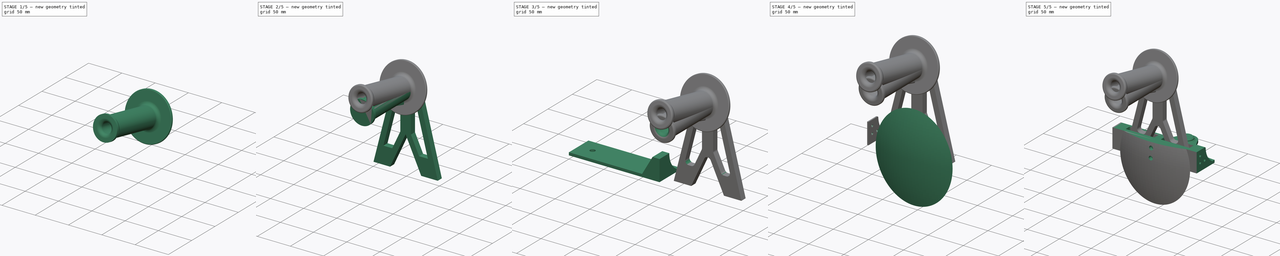
[diagram: build sequence overview — one tinted view per stage of 5, left to right]
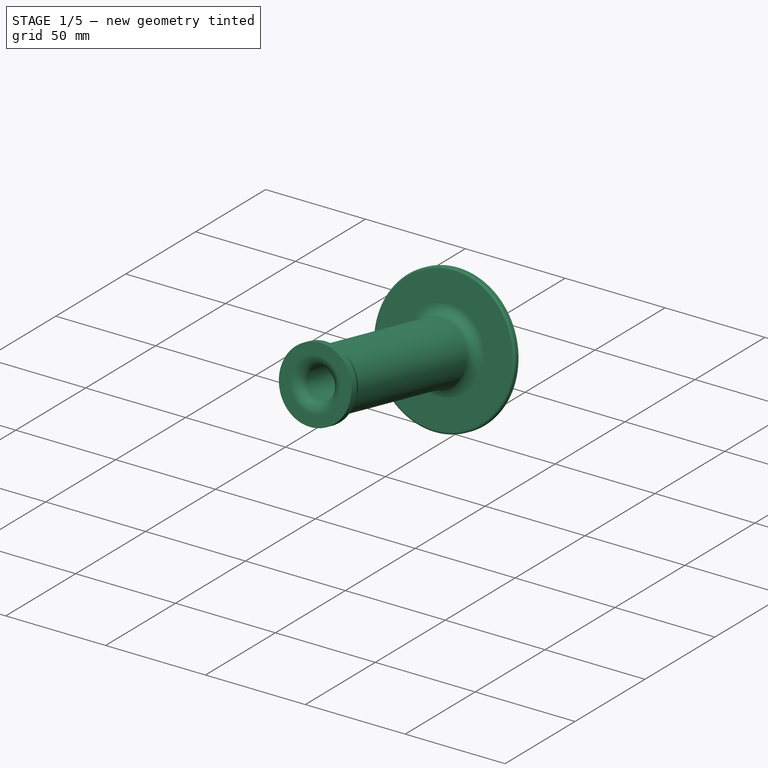
[diagram: stage 1 of 5 — iso view after this stage's code; geometry added in this stage tinted green]
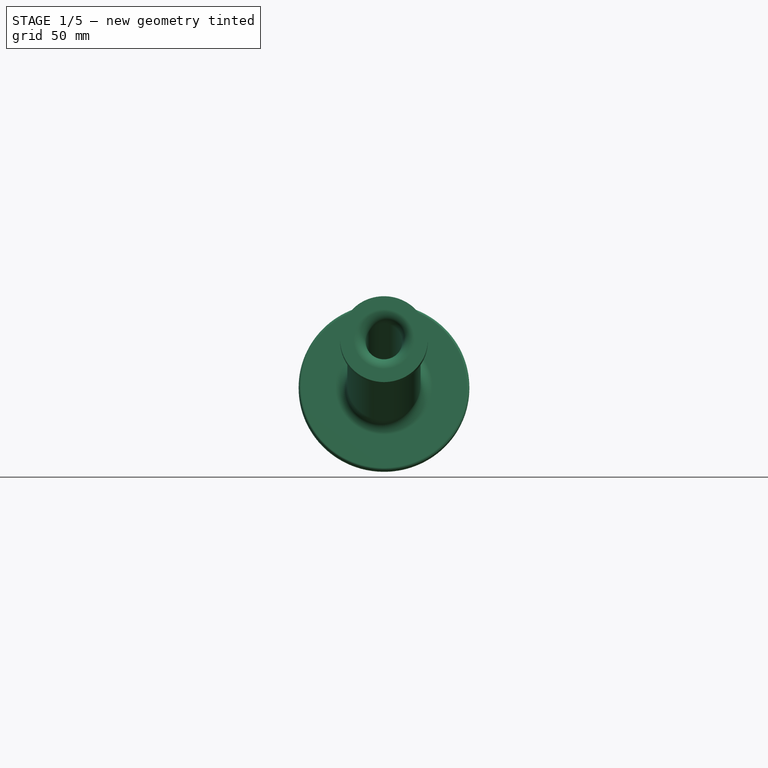
[diagram: stage 1 of 5 — front view after this stage's code; geometry added in this stage tinted green]
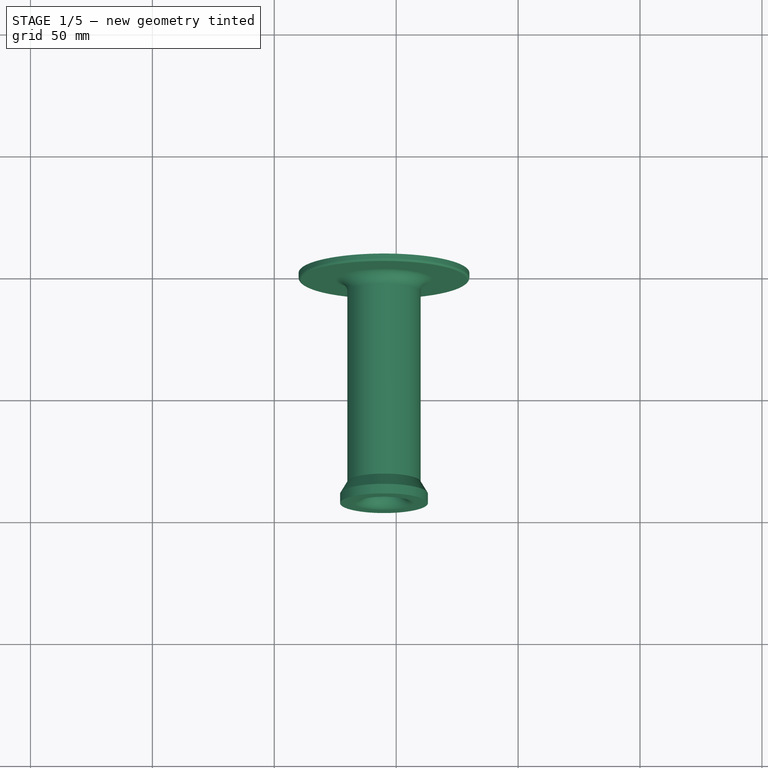
[diagram: stage 1 of 5 — top view after this stage's code; geometry added in this stage tinted green]
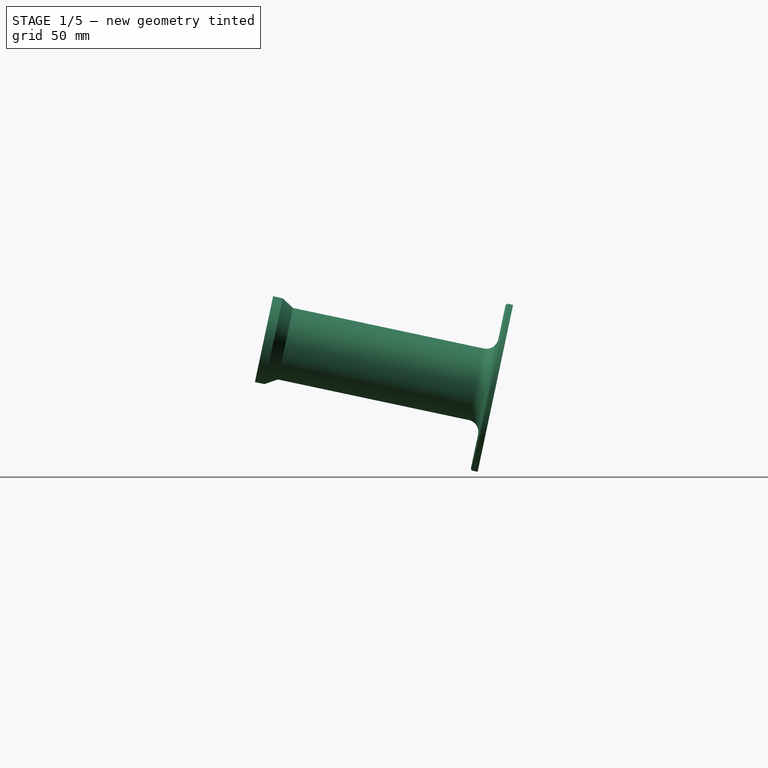
[diagram: stage 1 of 5 — right view after this stage's code; geometry added in this stage tinted green]
FCSTD DOCUMENT  (FreeCAD 0.19R)
Label: Spool_Holder_Kallax_A
License: All rights reserved
LicenseURL: http://en.wikipedia.org/wiki/All_rights_reserved
objects: Sketcher::SketchObject×31, PartDesign::Pad×14, PartDesign::Plane×14, PartDesign::Pocket×12, PartDesign::Fillet×10, PartDesign::Body×6, App::Part×6, PartDesign::Chamfer×5, PartDesign::Hole×3, PartDesign::Draft×2, PartDesign::Mirrored×2, Spreadsheet::Sheet×1, PartDesign::AdditiveLoft×1, PartDesign::Line×1, PartDesign::AdditivePipe×1
note: 150 computed .brp shape members not serialized (recipe doc carries the construction recipe); baked Part::Feature solids carry a one-line shape summary decoded from their .brp

FEATURE [PartDesign::Body] Body004
  Group = -> [DatumPlane007,Sketch019,Pad006,Sketch022,Pad007,Sketch023,Pad008,Chamfer002,DatumPlane008,Sketch024,Pad009,Sketch025,Pocket008,Fillet007,Fillet008,Chamfer003,Fillet009,Fillet011]
  Origin = -> Origin009
  Tip = -> Fillet011
FEATURE [App::Part] Part004  label="Stand"
  Group = -> [Body004]
  Origin = -> Origin008
FEATURE [PartDesign::Plane] DatumPlane009
  AttachmentOffset = pos=(0,0,5.625) rot=(0,0,1;0rad)
  Length = 310.324
  MapMode = 3
  Placement = pos=(0,5.625,-1.2e-15) rot=(0,0.707107,0.707107;3.14159rad)
  ResizeMode = 0
  Support = -> [X_Axis011]
  Width = 204.695
  expr: .AttachmentOffset.Base.z = 0.5 * (<<Input_Data>>.Support_Small - <<Input_Data>>.Support_Holes_Width) + 0.5 * <<Input_Data>>.Spool_Holder_Tol
FEATURE [Sketcher::SketchObject] Sketch026
  AttachmentOffset = pos=(0,0,0) rot=(0,1,0;3.14159rad)
  FullyConstrained = true
  MapMode = 2
  Placement = pos=(0,5.625,-1.2e-15) rot=(-1,0,0;4.71239rad)
  Support = -> [DatumPlane009]
  expr: Constraints[59] = <<Input_Data>>.Spool_Holder_Radius_Big
  expr: Constraints[43] = <<Input_Data>>.Spool_Build_Margin
  expr: Constraints[18] = <<Input_Data>>.Support_Height
  expr: Constraints[42] = <<Input_Data>>.Spool_Build_Margin
  expr: Constraints[13] = <<Input_Data>>.Link_Break + <<Input_Data>>.Link_Holes_Length + <<Input_Data>>.Support_Holes_Margin + <<Input_Data>>.Spool_Margin
  expr: Constraints[10] = <<Input_Data>>.Length_Kallax / 2
  expr: Constraints[48] = <<Input_Data>>.Spool_Build_Margin
  expr: Constraints[44] = <<Input_Data>>.Spool_Build_Margin
  expr: Constraints[16] = <<Input_Data>>.Spool_Head_Diam / 2 + <<Input_Data>>.Spool_Holder_Border
  expr: Constraints[58] = <<Input_Data>>.Spool_Holder_Radius_Big
  expr: Constraints[49] = <<Input_Data>>.Spool_Build_Margin
  expr: Constraints[45] = <<Input_Data>>.Spool_Build_Margin
  expr: Constraints[15] = <<Input_Data>>.Spool_Diam / 2 - <<Input_Data>>.Spool_Holder_Vert_Offset
  expr: Constraints[12] = <<Input_Data>>.Plate_Height
  sketch-geometry (22):
    g0: ArcOfCircle CenterX=195 CenterY=120 CenterZ=0 NormalX=0 NormalY=0 NormalZ=1 AngleXU=0 Radius=18 StartAngle=0.252358 EndAngle=2.88923
    g1: LineSegment StartX=177.57 StartY=124.494 StartZ=0 EndX=146.5 EndY=4 EndZ=0
    g2: LineSegment StartX=212.43 StartY=124.494 StartZ=0 EndX=243.5 EndY=4 EndZ=0
    g3: LineSegment StartX=146.5 StartY=4 StartZ=0 EndX=171.5 EndY=4 EndZ=0
    g4: LineSegment StartX=243.5 StartY=4 StartZ=0 EndX=218.5 EndY=4 EndZ=0
    g5: LineSegment StartX=171.5 StartY=4 StartZ=0 EndX=195 EndY=54.3959 EndZ=0
    g6: LineSegment StartX=195 StartY=54.3959 StartZ=0 EndX=218.5 EndY=4 EndZ=0
    g7: Circle CenterX=195 CenterY=120 CenterZ=0 NormalX=0 NormalY=0 NormalZ=1 AngleXU=0 Radius=90
    g8: LineSegment StartX=153.204 StartY=30 StartZ=0 EndX=236.796 EndY=30 EndZ=0
    g9: LineSegment StartX=195 StartY=120 StartZ=0 EndX=195 EndY=54.3959 EndZ=0
    g10: LineSegment StartX=161.466 StartY=30 StartZ=0 EndX=177.158 EndY=90.8576 EndZ=0
    g11: LineSegment StartX=212.842 StartY=90.8576 StartZ=0 EndX=228.534 EndY=30 EndZ=0
    g12: LineSegment StartX=203 StartY=56.1695 StartZ=0 EndX=215.203 EndY=30 EndZ=0
    g13: LineSegment StartX=174.797 StartY=30 StartZ=0 EndX=187 EndY=56.1695 EndZ=0
    g14: LineSegment StartX=187 StartY=56.1695 StartZ=0 EndX=187 EndY=89.6091 EndZ=0
    g15: LineSegment StartX=203 StartY=56.1695 StartZ=0 EndX=203 EndY=89.6091 EndZ=0
    g16: LineSegment StartX=161.466 StartY=30 StartZ=0 EndX=174.797 EndY=30 EndZ=0
    g17: LineSegment StartX=215.203 StartY=30 StartZ=0 EndX=228.534 EndY=30 EndZ=0
    g18: ArcOfCircle CenterX=208 CenterY=89.6091 CenterZ=0 NormalX=0 NormalY=0 NormalZ=1 AngleXU=0 Radius=5 StartAngle=0.252358 EndAngle=3.14159
    g19: GeomPoint X=203 Y=129.025 Z=0
    g20: ArcOfCircle CenterX=182 CenterY=89.6091 CenterZ=0 NormalX=0 NormalY=0 NormalZ=1 AngleXU=0 Radius=5 StartAngle=1.2e-15 EndAngle=2.88923
    g21: GeomPoint X=187 Y=129.025 Z=0
  constraints (60):
    c: Coincident(g3,g1)
    c: Horizontal(g3)
    c: Coincident(g4,g2)
    c: Horizontal(g4)
    c: Coincident(g5,g3)
    c: Coincident(g6,g5)
    c: Coincident(g6,g4)
    c: DistanceX(g3,g3) = 25
    c: DistanceX(g4,g4) = 25
    c: DistanceX(g0,g5) = 0
    c: DistanceX(g-1,g0) = 195
    c: DistanceY(g4,g3) = 0
    c: DistanceY(g-1,g1) = 4
    c: DistanceX(g-1,g1) = 146.5
    c: Coincident(g7,g0)
    c: Radius(g7) = 90
    c: Radius(g0) = 18
    c: Horizontal(g8)
    c: DistanceY(g-1,g8) = 30
    c: Tangent(g7,g8)
    c: Coincident(g9,g0)
    c: Coincident(g9,g5)
    c: Angle(g9,g5) = 2.70526
    c: Angle(g6,g9) = 2.70526
    c: Tangent(g0,g1) = -1.5708
    c: Tangent(g0,g2) = 1.5708
    c: PointOnObject(g8,g2)
    c: PointOnObject(g8,g1)
    c: Coincident(g14,g13)
    c: Vertical(g14)
    c: Coincident(g15,g12)
    c: Parallel(g11,g2)
    c: Parallel(g15,g9)
    c: Parallel(g13,g5)
    c: Parallel(g12,g6)
    c: Parallel(g10,g1)
    c: Coincident(g16,g10)
    c: Coincident(g16,g13)
    c: Coincident(g17,g12)
    c: Coincident(g17,g11)
    c: Horizontal(g17)
    c: Horizontal(g16)
    c: Distance(g19,g2) = 8
    c: Distance(g21,g1) = 8
    c: Distance(g13,g5) = 8
    c: Distance(g12,g6) = 8
    c: DistanceY(g8,g12) = 0
    c: DistanceY(g8,g13) = 0
    c: Distance(g21,g9) = 8
    c: Distance(g19,g9) = 8
    c: PointOnObject(g19,g11)
    c: PointOnObject(g19,g15)
    c: Tangent(g11,g18) = 1.5708
    c: Tangent(g15,g18) = 1.5708
    c: PointOnObject(g21,g10)
    c: PointOnObject(g21,g14)
    c: Tangent(g10,g20) = 1.5708
    c: Tangent(g14,g20) = -1.5708
    c: Radius(g18) = 5
    c: Radius(g20) = 5
FEATURE [PartDesign::Pad] Pad010
  Direction = (1,1,1)
  Length = 8.75
  Length2 = 100
  Placement = pos=(0,5.625,-1e-15) rot=(0,0.707107,0.707107;3.14159rad)
  Profile = -> Sketch026
  Reversed = true
  Type = 0
  expr: Length = <<Input_Data>>.Spool_Holder_Thick
FEATURE [PartDesign::Body] Body005
  Group = -> [DatumPlane009,Sketch026,Pad010,DatumPlane010,Sketch027,Pad011,DatumPlane011,Sketch028,Pocket009,Hole002]
  Origin = -> Origin011
  Tip = -> Hole002
FEATURE [App::Part] Part005  label="StandB1"
  Group = -> [Body005]
  Origin = -> Origin010
FEATURE [PartDesign::Plane] ReferenceDatumPlane010
  Length = 302.286
  MapMode = 5
  Placement = pos=(0,5.625,137.871) rot=(0,-0.62932,0.777146;3.14159rad)
  ResizeMode = 0
  Support = -> [DatumPlane010]
  Width = 268.79
FEATURE [PartDesign::Plane] DatumPlane012
  Length = 302.286
  MapMode = 5
  Placement = pos=(0,5.625,137.871) rot=(0,-0.62932,0.777146;3.14159rad)
  ResizeMode = 0
  Support = -> [ReferenceDatumPlane010]
  Width = 268.79
FEATURE [Sketcher::SketchObject] Sketch029
  FullyConstrained = true
  MapMode = 5
  Placement = pos=(0,5.625,137.871) rot=(0,-0.62932,0.777146;3.14159rad)
  Support = -> [DatumPlane012]
  expr: Constraints[1] = <<Input_Data>>.Spool_Head_Diam / 2 + <<Input_Data>>.Spool_Holder_Border
  expr: Constraints[0] = <<Input_Data>>.Length_Kallax / 2
  sketch-geometry (1):
    g0: Circle CenterX=-195 CenterY=18 CenterZ=0 NormalX=0 NormalY=0 NormalZ=1 AngleXU=0 Radius=35
  constraints (3):
    c: DistanceX(g0,g-1) = 195
    c: DistanceY(g-1,g0) = 18
    c: Radius(g0) = 35
FEATURE [PartDesign::Pad] Pad012
  Direction = (1,1,1)
  Length = 3
  Length2 = 100
  Placement = pos=(0,5.625,137.871) rot=(0,-0.62932,0.777146;3.14159rad)
  Profile = -> Sketch029
  Type = 0
FEATURE [Sketcher::SketchObject] Sketch030
  FullyConstrained = true
  MapMode = 5
  Placement = pos=(0,5.625,137.871) rot=(0,-0.62932,0.777146;3.14159rad)
  Support = -> [DatumPlane012]
  expr: Constraints[2] = <<Input_Data>>.Spool_Head_Diam / 2
  expr: Constraints[1] = <<Input_Data>>.Spool_Head_Diam / 2 + <<Input_Data>>.Spool_Holder_Border
  expr: Constraints[0] = <<Input_Data>>.Length_Kallax / 2
  sketch-geometry (1):
    g0: Circle CenterX=-195 CenterY=18 CenterZ=0 NormalX=0 NormalY=0 NormalZ=1 AngleXU=0 Radius=15
  constraints (3):
    c: DistanceX(g0,g-1) = 195
    c: DistanceY(g-1,g0) = 18
    c: Radius(g0) = 15
FEATURE [PartDesign::Pad] Pad013
  BaseFeature = -> Pad012
  Direction = (1,1,1)
  Length = 93
  Length2 = 100
  Placement = pos=(0,5.625,137.871) rot=(0,-0.62932,0.777146;3.14159rad)
  Profile = -> Sketch030
  Type = 0
  expr: Length = <<Input_Data>>.Spool_Holder_Length + 3
FEATURE [Sketcher::SketchObject] Sketch031
  FullyConstrained = true
  MapMode = 5
  Placement = pos=(-9e-16,-85.3427,157.207) rot=(0,-0.62932,0.777146;3.14159rad)
  Support = -> [Pad013]
  expr: Constraints[2] = <<Input_Data>>.Spool_Head_Diam / 2 + <<Input_Data>>.Spool_Holder_Border
  expr: Constraints[1] = <<Input_Data>>.Length_Kallax / 2
  expr: Constraints[0] = <<Input_Data>>.Spool_Head_Diam / 2 + <<Input_Data>>.Spool_Holder_Border
  sketch-geometry (1):
    g0: Circle CenterX=-195 CenterY=18 CenterZ=0 NormalX=0 NormalY=0 NormalZ=1 AngleXU=0 Radius=18
  constraints (3):
    c: Radius(g0) = 18
    c: DistanceX(g0,g-1) = 195
    c: DistanceY(g-1,g0) = 18
FEATURE [PartDesign::Pad] Pad014
  BaseFeature = -> Pad013
  Direction = (1,1,1)
  Length = 4
  Length2 = 100
  Placement = pos=(0,5.625,137.871) rot=(0,-0.62932,0.777146;3.14159rad)
  Profile = -> Sketch031
  Type = 0
  expr: Length = <<Input_Data>>.Spool_Holder_Stop_Len
FEATURE [Sketcher::SketchObject] Sketch032
  FullyConstrained = true
  MapMode = 5
  Placement = pos=(-2.52e-14,-89.2553,158.038) rot=(0,-0.62932,0.777146;3.14159rad)
  Support = -> [Pad014]
  expr: Constraints[2] = <<Input_Data>>.Spool_Head_Diam / 2 + <<Input_Data>>.Spool_Holder_Border
  expr: Constraints[1] = <<Input_Data>>.Length_Kallax / 2
  expr: Constraints[0] = <<Input_Data>>.Spool_Holder_Inner_Hole / 2
  sketch-geometry (1):
    g0: Circle CenterX=-195 CenterY=18 CenterZ=0 NormalX=0 NormalY=0 NormalZ=1 AngleXU=0 Radius=7.5
  constraints (3):
    c: Radius(g0) = 7.5
    c: DistanceX(g0,g-1) = 195
    c: DistanceY(g-1,g0) = 18
FEATURE [PartDesign::Pocket] Pocket010
  BaseFeature = -> Pad014
  Length = 80
  Length2 = 100
  Placement = pos=(0,5.625,137.871) rot=(0,-0.62932,0.777146;3.14159rad)
  Profile = -> Sketch032
  Type = 0
  expr: Length = <<Input_Data>>.Spool_Holder_Length - 10
FEATURE [Sketcher::SketchObject] Sketch033
  FullyConstrained = true
  MapMode = 5
  Placement = pos=(0,5.625,137.871) rot=(0,-0.62932,0.777146;3.14159rad)
  Support = -> [ReferenceDatumPlane010]
  expr: Constraints[19] = <<Input_Data>>.Insert_Width / 2
  expr: Constraints[1] = <<Input_Data>>.Spool_Head_Diam / 2 + <<Input_Data>>.Spool_Holder_Border
  expr: Constraints[0] = <<Input_Data>>.Length_Kallax / 2
  sketch-geometry (9):
    g0: Circle CenterX=-195 CenterY=18 CenterZ=0 NormalX=0 NormalY=0 NormalZ=1 AngleXU=0 Radius=10
    g1: LineSegment StartX=-195 StartY=18 StartZ=0 EndX=-195 EndY=28 EndZ=0
    g2: LineSegment StartX=-195 StartY=18 StartZ=0 EndX=-195 EndY=8 EndZ=0
    g3: LineSegment StartX=-195 StartY=18 StartZ=0 EndX=-185 EndY=18 EndZ=0
    g4: LineSegment StartX=-195 StartY=18 StartZ=0 EndX=-205 EndY=18 EndZ=0
    g5: Circle CenterX=-195 CenterY=28 CenterZ=0 NormalX=0 NormalY=0 NormalZ=1 AngleXU=0 Radius=2
    g6: Circle CenterX=-185 CenterY=18 CenterZ=0 NormalX=0 NormalY=0 NormalZ=1 AngleXU=0 Radius=2
    g7: Circle CenterX=-195 CenterY=8 CenterZ=0 NormalX=0 NormalY=0 NormalZ=1 AngleXU=0 Radius=2
    g8: Circle CenterX=-205 CenterY=18 CenterZ=0 NormalX=0 NormalY=0 NormalZ=1 AngleXU=0 Radius=2
  constraints (23):
    c: DistanceX(g0,g-1) = 195
    c: DistanceY(g-1,g0) = 18
    c: Radius(g0) = 10
    c: Coincident(g1,g0)
    c: PointOnObject(g1,g0)
    c: Vertical(g1)
    c: Coincident(g2,g0)
    c: PointOnObject(g2,g0)
    c: Vertical(g2)
    c: Coincident(g3,g0)
    c: PointOnObject(g3,g0)
    c: Horizontal(g3)
    c: Coincident(g4,g0)
    c: PointOnObject(g4,g0)
    c: Horizontal(g4)
    c: Coincident(g5,g1)
    c: Coincident(g6,g3)
    c: Coincident(g7,g2)
    c: Coincident(g8,g4)
    c: Radius(g6) = 2
    c: Equal(g6,g5)
    c: Equal(g6,g8)
    c: Equal(g6,g7)
FEATURE [PartDesign::Pocket] Pocket011
  BaseFeature = -> Pocket010
  Length = 9
  Length2 = 100
  Placement = pos=(0,5.625,137.871) rot=(0,-0.62932,0.777146;3.14159rad)
  Profile = -> Sketch033
  Reversed = true
  Type = 0
FEATURE [PartDesign::Fillet] Fillet013
  Base = -> Pocket011 [Edge6,Edge5]
  BaseFeature = -> Pocket011
  Placement = pos=(0,5.625,137.871) rot=(0,-0.62932,0.777146;3.14159rad)
  Radius = 5
  SupportTransform = false
  expr: Radius = <<Input_Data>>.Spool_Holder_Inner_Radius
FEATURE [PartDesign::Fillet] Fillet014
  Base = -> Fillet013 [Edge14]
  BaseFeature = -> Fillet013
  Placement = pos=(0,5.625,137.871) rot=(0,-0.62932,0.777146;3.14159rad)
  Radius = 1
  SupportTransform = false
FEATURE [PartDesign::Chamfer] Chamfer004
  Angle = 45
  Base = -> Fillet014 [Edge10]
  BaseFeature = -> Fillet014
  ChamferType = 1
  FlipDirection = false
  Placement = pos=(0,5.625,137.871) rot=(0,-0.62932,0.777146;3.14159rad)
  Size = 5
  Size2 = 2.99
  SupportTransform = false
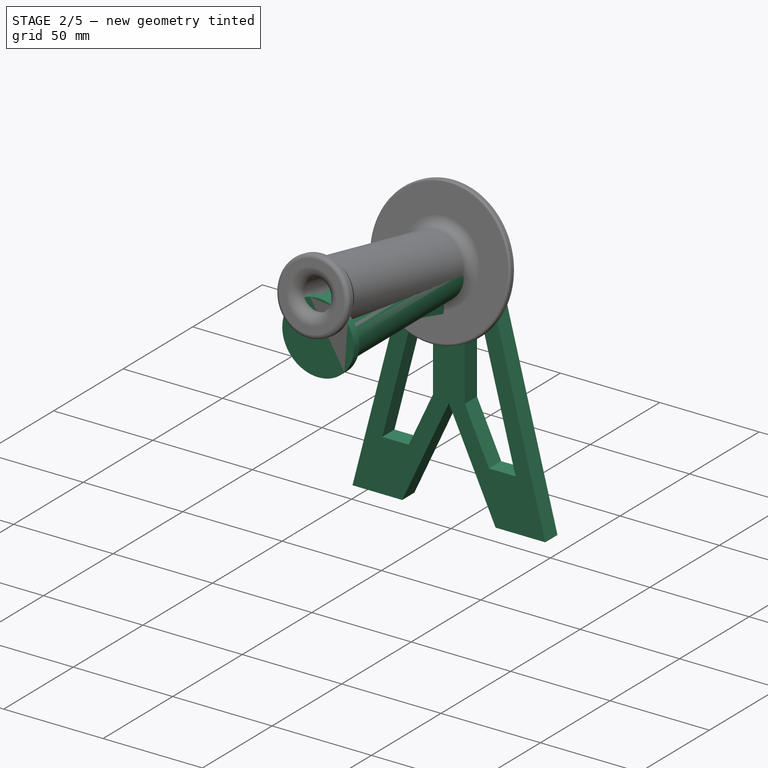
[diagram: stage 2 of 5 — iso view after this stage's code; geometry added in this stage tinted green]
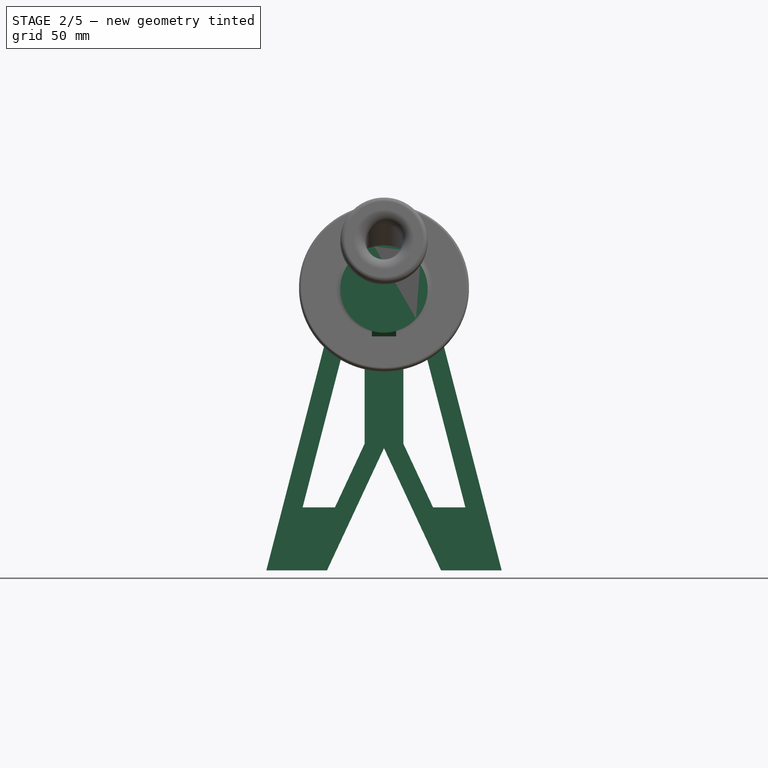
[diagram: stage 2 of 5 — front view after this stage's code; geometry added in this stage tinted green]
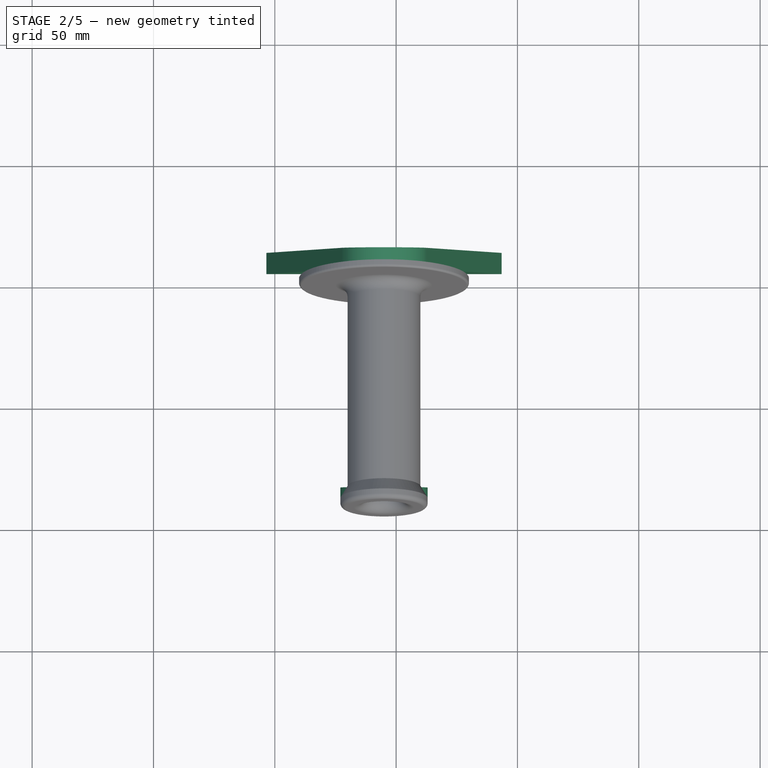
[diagram: stage 2 of 5 — top view after this stage's code; geometry added in this stage tinted green]
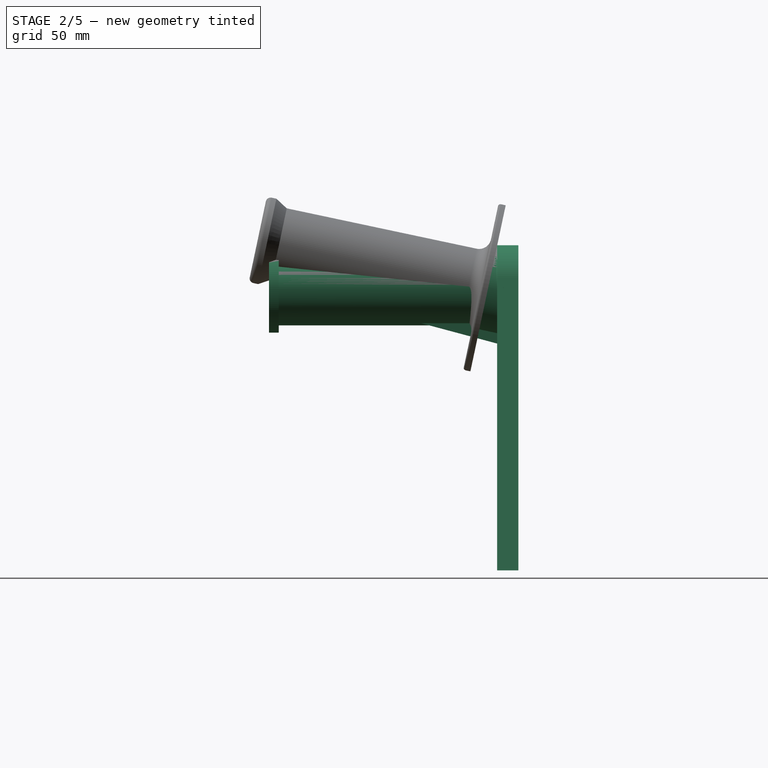
[diagram: stage 2 of 5 — right view after this stage's code; geometry added in this stage tinted green]
FEATURE [PartDesign::Body] Body
  Group = -> [Sketch,Pad,Sketch008,Pad003,Draft,DatumPlane001,Sketch009,Pocket001,Hole,Sketch010,Pad004,Chamfer,Draft001,Fillet,Fillet001,Sketch021,Pocket007]
  Origin = -> Origin001
  Tip = -> Pocket007
FEATURE [App::Part] Part  label="Left"
  Group = -> [Body]
  Origin = -> Origin
FEATURE [PartDesign::Plane] DatumPlane007
  AttachmentOffset = pos=(0,0,5.625) rot=(0,0,1;0rad)
  Length = 308.756
  MapMode = 3
  Placement = pos=(0,5.625,-1.2e-15) rot=(0,0.707107,0.707107;3.14159rad)
  ResizeMode = 0
  Support = -> [X_Axis009]
  Width = 204.581
  expr: .AttachmentOffset.Base.z = 0.5 * (<<Input_Data>>.Support_Small - <<Input_Data>>.Support_Holes_Width) + 0.5 * <<Input_Data>>.Spool_Holder_Tol
FEATURE [Sketcher::SketchObject] Sketch019
  AttachmentOffset = pos=(0,0,0) rot=(0,1,0;3.14159rad)
  FullyConstrained = true
  MapMode = 2
  Placement = pos=(0,5.625,-1.2e-15) rot=(-1,0,0;4.71239rad)
  Support = -> [DatumPlane007]
  expr: Constraints[12] = <<Input_Data>>.Plate_Height
  expr: Constraints[15] = <<Input_Data>>.Spool_Diam / 2 - <<Input_Data>>.Spool_Holder_Vert_Offset
  expr: Constraints[45] = <<Input_Data>>.Spool_Build_Margin
  expr: Constraints[49] = <<Input_Data>>.Spool_Build_Margin
  expr: Constraints[58] = <<Input_Data>>.Spool_Holder_Radius_Big
  expr: Constraints[16] = <<Input_Data>>.Spool_Head_Diam / 2 + <<Input_Data>>.Spool_Holder_Border
  expr: Constraints[44] = <<Input_Data>>.Spool_Build_Margin
  expr: Constraints[48] = <<Input_Data>>.Spool_Build_Margin
  expr: Constraints[10] = <<Input_Data>>.Length_Kallax / 2
  expr: Constraints[13] = <<Input_Data>>.Link_Break + <<Input_Data>>.Link_Holes_Length + <<Input_Data>>.Support_Holes_Margin + <<Input_Data>>.Spool_Margin
  expr: Constraints[42] = <<Input_Data>>.Spool_Build_Margin
  expr: Constraints[18] = <<Input_Data>>.Support_Height
  expr: Constraints[43] = <<Input_Data>>.Spool_Build_Margin
  expr: Constraints[59] = <<Input_Data>>.Spool_Holder_Radius_Big
  sketch-geometry (22):
    g0: ArcOfCircle CenterX=195 CenterY=120 CenterZ=0 NormalX=0 NormalY=0 NormalZ=1 AngleXU=0 Radius=18 StartAngle=0.252358 EndAngle=2.88923
    g1: LineSegment StartX=177.57 StartY=124.494 StartZ=0 EndX=146.5 EndY=4 EndZ=0
    g2: LineSegment StartX=212.43 StartY=124.494 StartZ=0 EndX=243.5 EndY=4 EndZ=0
    g3: LineSegment StartX=146.5 StartY=4 StartZ=0 EndX=171.5 EndY=4 EndZ=0
    g4: LineSegment StartX=243.5 StartY=4 StartZ=0 EndX=218.5 EndY=4 EndZ=0
    g5: LineSegment StartX=171.5 StartY=4 StartZ=0 EndX=195 EndY=54.3959 EndZ=0
    g6: LineSegment StartX=195 StartY=54.3959 StartZ=0 EndX=218.5 EndY=4 EndZ=0
    g7: Circle CenterX=195 CenterY=120 CenterZ=0 NormalX=0 NormalY=0 NormalZ=1 AngleXU=0 Radius=90
    g8: LineSegment StartX=153.204 StartY=30 StartZ=0 EndX=236.796 EndY=30 EndZ=0
    g9: LineSegment StartX=195 StartY=120 StartZ=0 EndX=195 EndY=54.3959 EndZ=0
    g10: LineSegment StartX=161.466 StartY=30 StartZ=0 EndX=177.158 EndY=90.8576 EndZ=0
    g11: LineSegment StartX=212.842 StartY=90.8576 StartZ=0 EndX=228.534 EndY=30 EndZ=0
    g12: LineSegment StartX=203 StartY=56.1695 StartZ=0 EndX=215.203 EndY=30 EndZ=0
    g13: LineSegment StartX=174.797 StartY=30 StartZ=0 EndX=187 EndY=56.1695 EndZ=0
    g14: LineSegment StartX=187 StartY=56.1695 StartZ=0 EndX=187 EndY=89.6091 EndZ=0
    g15: LineSegment StartX=203 StartY=56.1695 StartZ=0 EndX=203 EndY=89.6091 EndZ=0
    g16: LineSegment StartX=161.466 StartY=30 StartZ=0 EndX=174.797 EndY=30 EndZ=0
    g17: LineSegment StartX=215.203 StartY=30 StartZ=0 EndX=228.534 EndY=30 EndZ=0
    g18: ArcOfCircle CenterX=208 CenterY=89.6091 CenterZ=0 NormalX=0 NormalY=0 NormalZ=1 AngleXU=0 Radius=5 StartAngle=0.252358 EndAngle=3.14159
    g19: GeomPoint X=203 Y=129.025 Z=0
    g20: ArcOfCircle CenterX=182 CenterY=89.6091 CenterZ=0 NormalX=0 NormalY=0 NormalZ=1 AngleXU=0 Radius=5 StartAngle=1.2e-15 EndAngle=2.88923
    g21: GeomPoint X=187 Y=129.025 Z=0
  constraints (60):
    c: Coincident(g3,g1)
    c: Horizontal(g3)
    c: Coincident(g4,g2)
    c: Horizontal(g4)
    c: Coincident(g5,g3)
    c: Coincident(g6,g5)
    c: Coincident(g6,g4)
    c: DistanceX(g3,g3) = 25
    c: DistanceX(g4,g4) = 25
    c: DistanceX(g0,g5) = 0
    c: DistanceX(g-1,g0) = 195
    c: DistanceY(g4,g3) = 0
    c: DistanceY(g-1,g1) = 4
    c: DistanceX(g-1,g1) = 146.5
    c: Coincident(g7,g0)
    c: Radius(g7) = 90
    c: Radius(g0) = 18
    c: Horizontal(g8)
    c: DistanceY(g-1,g8) = 30
    c: Tangent(g7,g8)
    c: Coincident(g9,g0)
    c: Coincident(g9,g5)
    c: Angle(g9,g5) = 2.70526
    c: Angle(g6,g9) = 2.70526
    c: Tangent(g0,g1) = -1.5708
    c: Tangent(g0,g2) = 1.5708
    c: PointOnObject(g8,g2)
    c: PointOnObject(g8,g1)
    c: Coincident(g14,g13)
    c: Vertical(g14)
    c: Coincident(g15,g12)
    c: Parallel(g11,g2)
    c: Parallel(g15,g9)
    c: Parallel(g13,g5)
    c: Parallel(g12,g6)
    c: Parallel(g10,g1)
    c: Coincident(g16,g10)
    c: Coincident(g16,g13)
    c: Coincident(g17,g12)
    c: Coincident(g17,g11)
    c: Horizontal(g17)
    c: Horizontal(g16)
    c: Distance(g19,g2) = 8
    c: Distance(g21,g1) = 8
    c: Distance(g13,g5) = 8
    c: Distance(g12,g6) = 8
    c: DistanceY(g8,g12) = 0
    c: DistanceY(g8,g13) = 0
    c: Distance(g21,g9) = 8
    c: Distance(g19,g9) = 8
    c: PointOnObject(g19,g11)
    c: PointOnObject(g19,g15)
    c: Tangent(g11,g18) = 1.5708
    c: Tangent(g15,g18) = 1.5708
    c: PointOnObject(g21,g10)
    c: PointOnObject(g21,g14)
    c: Tangent(g10,g20) = 1.5708
    c: Tangent(g14,g20) = -1.5708
    c: Radius(g18) = 5
    c: Radius(g20) = 5
FEATURE [PartDesign::Pad] Pad006
  Direction = (1,1,1)
  Length = 8.75
  Length2 = 100
  Placement = pos=(0,5.625,-1e-15) rot=(0,0.707107,0.707107;3.14159rad)
  Profile = -> Sketch019
  Reversed = true
  Type = 0
  expr: Length = <<Input_Data>>.Spool_Holder_Thick
FEATURE [Sketcher::SketchObject] Sketch022
  FullyConstrained = true
  MapMode = 5
  Placement = pos=(0,5.625,-1e-15) rot=(0,-0.707107,0.707107;3.14159rad)
  Support = -> [Pad006]
  expr: Constraints[0] = <<Input_Data>>.Spool_Head_Diam / 2
  expr: Constraints[1] = <<Input_Data>>.Length_Kallax / 2
  expr: Constraints[2] = <<Input_Data>>.Support_Height + <<Input_Data>>.Spool_Diam / 2 - <<Input_Data>>.Spool_Holder_Vert_Offset
  sketch-geometry (1):
    g0: Circle CenterX=-195 CenterY=-120 CenterZ=0 NormalX=0 NormalY=0 NormalZ=1 AngleXU=0 Radius=15
  constraints (3):
    c: Radius(g0) = 15
    c: DistanceX(g0,g-1) = 195
    c: DistanceY(g0,g-1) = 120
FEATURE [PartDesign::Pad] Pad007
  BaseFeature = -> Pad006
  Direction = (1,1,1)
  Length = 90
  Length2 = 100
  Placement = pos=(0,5.625,-1e-15) rot=(0,0.707107,0.707107;3.14159rad)
  Profile = -> Sketch022
  Type = 0
  expr: Length = <<Input_Data>>.Spool_Holder_Length
FEATURE [Sketcher::SketchObject] Sketch023
  FullyConstrained = true
  MapMode = 5
  Placement = pos=(-3.6e-15,-84.375,3.79e-14) rot=(0,-0.707107,0.707107;3.14159rad)
  Support = -> [Pad007]
  expr: Constraints[0] = <<Input_Data>>.Spool_Head_Diam / 2 + <<Input_Data>>.Spool_Holder_Border
  expr: Constraints[1] = <<Input_Data>>.Length_Kallax / 2
  expr: Constraints[2] = <<Input_Data>>.Support_Height + <<Input_Data>>.Spool_Diam / 2 - <<Input_Data>>.Spool_Holder_Vert_Offset
  sketch-geometry (1):
    g0: Circle CenterX=-195 CenterY=-120 CenterZ=0 NormalX=0 NormalY=0 NormalZ=1 AngleXU=0 Radius=18
  constraints (3):
    c: Radius(g0) = 18
    c: DistanceX(g0,g-1) = 195
    c: DistanceY(g0,g-1) = 120
FEATURE [PartDesign::Pad] Pad008
  BaseFeature = -> Pad007
  Direction = (1,1,1)
  Length = 4
  Length2 = 100
  Placement = pos=(0,5.625,-1e-15) rot=(0,0.707107,0.707107;3.14159rad)
  Profile = -> Sketch023
  Type = 0
  expr: Length = <<Input_Data>>.Spool_Holder_Stop_Len
FEATURE [PartDesign::Plane] DatumPlane008
  AttachmentOffset = pos=(0,0,195) rot=(0,0,1;0rad)
  Length = 140.553
  MapMode = 2
  Placement = pos=(195,-4.33e-14,4.33e-14) rot=(0.57735,0.57735,0.57735;2.0944rad)
  ResizeMode = 0
  Support = -> [YZ_Plane009]
  Width = 190.048
  expr: .AttachmentOffset.Base.z = <<Input_Data>>.Length_Kallax / 2
FEATURE [Sketcher::SketchObject] Sketch024
  FullyConstrained = true
  MapMode = 5
  Placement = pos=(195,-4.33e-14,4.33e-14) rot=(0.57735,0.57735,0.57735;2.0944rad)
  Support = -> [DatumPlane008]
  expr: Constraints[6] = <<Input_Data>>.Support_Height + <<Input_Data>>.Spool_Diam / 2 - <<Input_Data>>.Spool_Holder_Vert_Offset
  expr: Constraints[5] = (<<Input_Data>>.Support_Small - <<Input_Data>>.Support_Holes_Width) / 2 + <<Input_Data>>.Spool_Holder_Tol / 2
  sketch-geometry (3):
    g0: LineSegment StartX=-78.3461 StartY=120 StartZ=0 EndX=5.625 EndY=97.5 EndZ=0
    g1: LineSegment StartX=-78.3461 StartY=120 StartZ=0 EndX=5.625 EndY=120 EndZ=0
    g2: LineSegment StartX=5.625 StartY=120 StartZ=0 EndX=5.625 EndY=97.5 EndZ=0
  constraints (9):
    c: Coincident(g1,g0)
    c: Horizontal(g1)
    c: Coincident(g2,g1)
    c: Coincident(g2,g0)
    c: Vertical(g2)
    c: DistanceX(g-1,g0) = 5.625
    c: DistanceY(g-1,g0) = 120
    c: Angle(g0,g1) = 0.261799
    c: DistanceY(g2,g2) = 22.5
FEATURE [Sketcher::SketchObject] Sketch025
  FullyConstrained = true
  MapMode = 5
  Placement = pos=(4.1e-14,-88.375,4.2e-14) rot=(0,0.707107,-0.707107;3.14159rad)
  expr: Constraints[2] = <<Input_Data>>.Support_Height + <<Input_Data>>.Spool_Diam / 2 - <<Input_Data>>.Spool_Holder_Vert_Offset
  expr: Constraints[1] = <<Input_Data>>.Spool_Holder_Inner_Hole / 2
  expr: Constraints[0] = <<Input_Data>>.Length_Kallax / 2
  sketch-geometry (1):
    g0: Circle CenterX=-195 CenterY=-120 CenterZ=0 NormalX=0 NormalY=0 NormalZ=1 AngleXU=0 Radius=7.5
  constraints (3):
    c: DistanceX(g0,g-1) = 195
    c: Radius(g0) = 7.5
    c: DistanceY(g0,g-1) = 120
FEATURE [PartDesign::Chamfer] Chamfer002
  Angle = 45
  Base = -> Pad008 [Edge6]
  BaseFeature = -> Pad008
  ChamferType = 1
  FlipDirection = false
  Placement = pos=(0,5.625,-1e-15) rot=(0,0.707107,0.707107;3.14159rad)
  Size = 8
  Size2 = 2.97
  SupportTransform = false
  expr: Size2 = <<Input_Data>>.Spool_Holder_Border * 0.99
FEATURE [PartDesign::Pad] Pad009
  BaseFeature = -> Chamfer002
  Direction = (1,1,1)
  Length = 10
  Length2 = 100
  Midplane = true
  Placement = pos=(0,5.625,-1e-15) rot=(0,0.707107,0.707107;3.14159rad)
  Profile = -> Sketch024
  Type = 0
FEATURE [PartDesign::Plane] DatumPlane010
  AttachmentOffset = pos=(0,-137.871,0) rot=(1,0,0;0.20944rad)
  Length = 311.193
  MapMode = 5
  Placement = pos=(0,5.625,137.871) rot=(0,-0.62932,0.777146;3.14159rad)
  ResizeMode = 0
  Support = -> [Pad010]
  Width = 212.4
  expr: .AttachmentOffset.Base.y = -Pad010.Shape.BoundBox.ZMax
FEATURE [Sketcher::SketchObject] Sketch027
  FullyConstrained = true
  MapMode = 5
  Placement = pos=(0,5.625,137.871) rot=(0,-0.62932,0.777146;3.14159rad)
  Support = -> [DatumPlane010]
  expr: Constraints[2] = <<Input_Data>>.Length_Kallax / 2
  expr: Constraints[1] = <<Input_Data>>.Spool_Head_Diam / 2 + <<Input_Data>>.Spool_Holder_Border
  expr: Constraints[0] = <<Input_Data>>.Spool_Head_Diam / 2 + <<Input_Data>>.Spool_Holder_Border
  sketch-geometry (1):
    g0: Circle CenterX=-195 CenterY=18 CenterZ=0 NormalX=0 NormalY=0 NormalZ=1 AngleXU=0 Radius=18
  constraints (3):
    c: DistanceY(g-1,g0) = 18
    c: Radius(g0) = 18
    c: DistanceX(g0,g-1) = 195
FEATURE [PartDesign::Pad] Pad011
  BaseFeature = -> Pad010
  Direction = (1,1,1)
  Length = 8
  Length2 = 100
  Placement = pos=(0,5.625,-1e-15) rot=(0,0.707107,0.707107;3.14159rad)
  Profile = -> Sketch027
  Reversed = true
  Type = 0
FEATURE [PartDesign::Plane] DatumPlane011
  AttachmentOffset = pos=(0,0,-6) rot=(0,0,1;0rad)
  Length = 311.193
  MapMode = 5
  Placement = pos=(8e-16,11.4939,136.623) rot=(0,-0.62932,0.777146;3.14159rad)
  ResizeMode = 0
  Support = -> [DatumPlane010]
  Width = 212.4
FEATURE [Sketcher::SketchObject] Sketch028
  FullyConstrained = true
  MapMode = 5
  Placement = pos=(8e-16,11.4939,136.623) rot=(0,-0.62932,0.777146;3.14159rad)
  Support = -> [DatumPlane011]
  expr: Constraints[19] = <<Input_Data>>.Link_Holes_HeadDiam / 2
  expr: Constraints[14] = <<Input_Data>>.Spool_Head_Diam / 2 + <<Input_Data>>.Spool_Holder_Border
  expr: Constraints[13] = <<Input_Data>>.Length_Kallax / 2
  sketch-geometry (9):
    g0: Circle CenterX=-195 CenterY=18 CenterZ=0 NormalX=0 NormalY=0 NormalZ=1 AngleXU=0 Radius=10
    g1: LineSegment StartX=-195 StartY=18 StartZ=0 EndX=-195 EndY=28 EndZ=0
    g2: LineSegment StartX=-195 StartY=18 StartZ=0 EndX=-185 EndY=18 EndZ=0
    g3: LineSegment StartX=-195 StartY=18 StartZ=0 EndX=-205 EndY=18 EndZ=0
    g4: LineSegment StartX=-195 StartY=18 StartZ=0 EndX=-195 EndY=8 EndZ=0
    g5: Circle CenterX=-195 CenterY=28 CenterZ=0 NormalX=0 NormalY=0 NormalZ=1 AngleXU=0 Radius=3.15
    g6: Circle CenterX=-185 CenterY=18 CenterZ=0 NormalX=0 NormalY=0 NormalZ=1 AngleXU=0 Radius=3.15
    g7: Circle CenterX=-195 CenterY=8 CenterZ=0 NormalX=0 NormalY=0 NormalZ=1 AngleXU=0 Radius=3.15
    g8: Circle CenterX=-205 CenterY=18 CenterZ=0 NormalX=0 NormalY=0 NormalZ=1 AngleXU=0 Radius=3.15
  constraints (23):
    c: Coincident(g1,g0)
    c: PointOnObject(g1,g0)
    c: Vertical(g1)
    c: Coincident(g2,g0)
    c: PointOnObject(g2,g0)
    c: Horizontal(g2)
    c: Coincident(g3,g0)
    c: PointOnObject(g3,g0)
    c: Horizontal(g3)
    c: Coincident(g4,g0)
    c: PointOnObject(g4,g0)
    c: Vertical(g4)
    c: Radius(g0) = 10
    c: DistanceX(g0,g-1) = 195
    c: DistanceY(g-1,g0) = 18
    c: Coincident(g5,g1)
    c: Coincident(g6,g2)
    c: Coincident(g7,g4)
    c: Coincident(g8,g3)
    c: Radius(g8) = 3.15
    c: Equal(g8,g5)
    c: Equal(g8,g6)
    c: Equal(g8,g7)
FEATURE [PartDesign::Pocket] Pocket009
  BaseFeature = -> Pad011
  Length = 5
  Length2 = 100
  Placement = pos=(0,5.625,-1e-15) rot=(0,0.707107,0.707107;3.14159rad)
  Profile = -> Sketch028
  Type = 1
FEATURE [PartDesign::Hole] Hole002
  BaseFeature = -> Pocket009
  Depth = 25
  DepthType = 0
  Diameter = 3.4
  DrillForDepth = false
  DrillPoint = 1
  DrillPointAngle = 118
  HoleCutCountersinkAngle = 90
  HoleCutCustomValues = false
  HoleCutDepth = 0
  HoleCutDiameter = 6.1
  HoleCutType = 0
  ModelActualThread = false
  Placement = pos=(0,5.625,-1e-15) rot=(0,0.707107,0.707107;3.14159rad)
  Profile = -> Sketch028
  Reversed = true
  Tapered = false
  TaperedAngle = 90
  ThreadAngle = 0
  ThreadClass = 0
  ThreadCutOffInner = 0
  ThreadCutOffOuter = 0
  ThreadDirection = 0
  ThreadFit = 0
  ThreadPitch = 0
  ThreadSize = 9
  ThreadType = 1
  Threaded = false
FEATURE [PartDesign::Fillet] Fillet015
  Base = -> Chamfer004 [Edge11]
  BaseFeature = -> Chamfer004
  Placement = pos=(0,5.625,137.871) rot=(0,-0.62932,0.777146;3.14159rad)
  Radius = 2
  SupportTransform = false
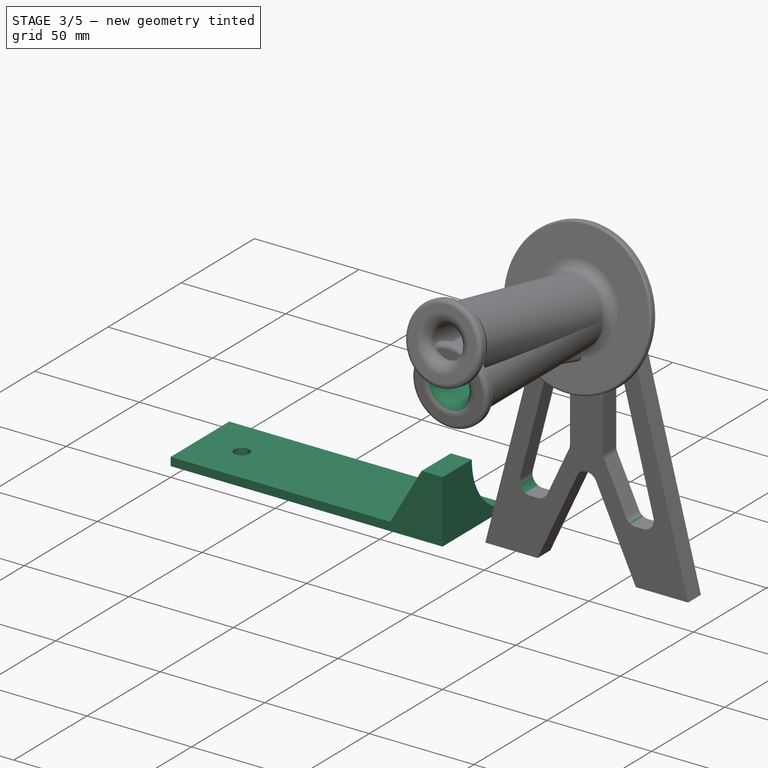
[diagram: stage 3 of 5 — iso view after this stage's code; geometry added in this stage tinted green]
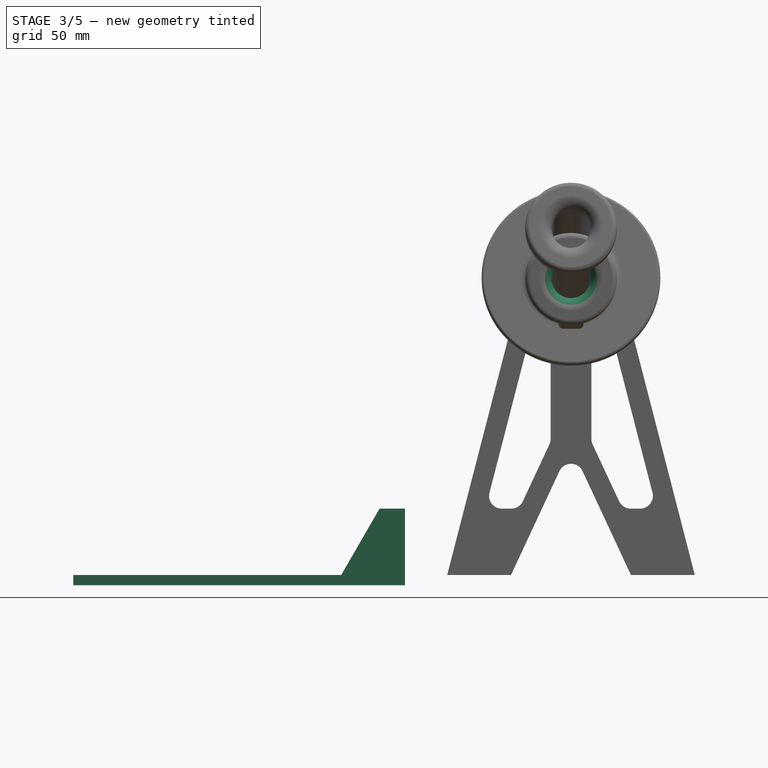
[diagram: stage 3 of 5 — front view after this stage's code; geometry added in this stage tinted green]
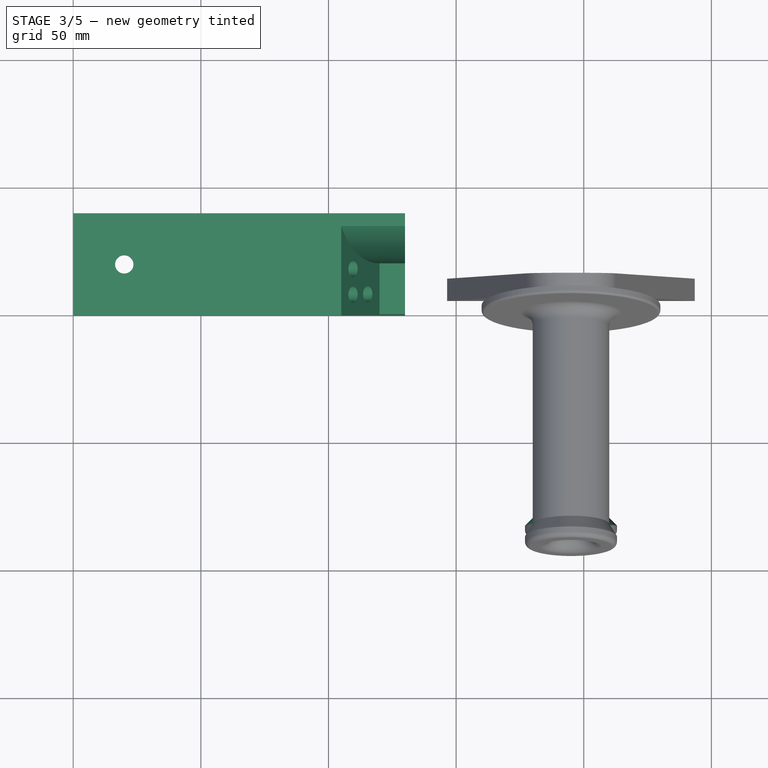
[diagram: stage 3 of 5 — top view after this stage's code; geometry added in this stage tinted green]
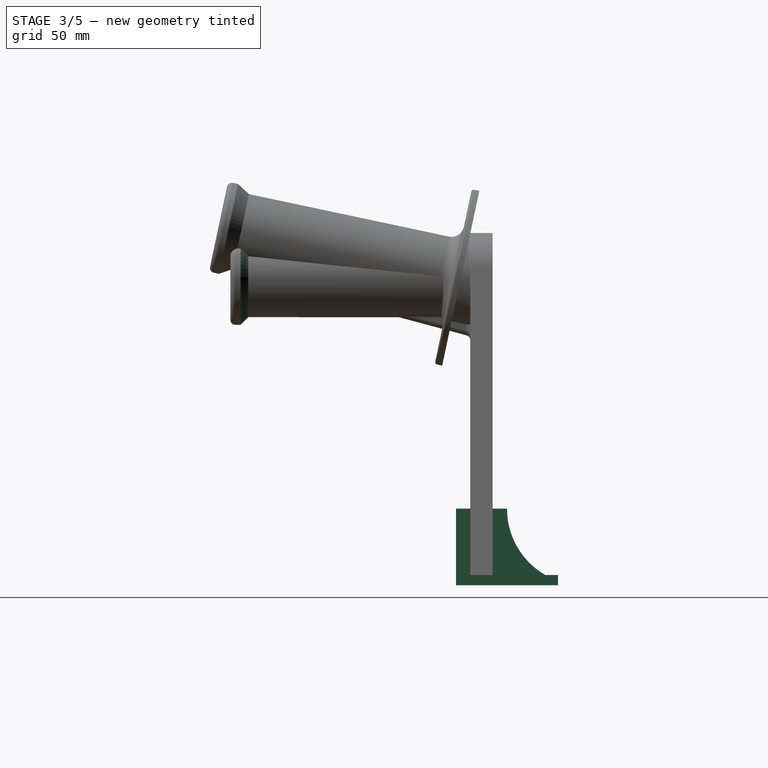
[diagram: stage 3 of 5 — right view after this stage's code; geometry added in this stage tinted green]
FEATURE [Sketcher::SketchObject] Sketch
  FullyConstrained = true
  MapMode = 5
  Support = -> [XY_Plane001]
  expr: Constraints[12] = <<Input_Data>>.Center_Kallax
  expr: Constraints[11] = <<Input_Data>>.Center_Kallax
  expr: Constraints[10] = <<Input_Data>>.Width_Kallax
  expr: Constraints[9] = <<Input_Data>>.Link_Break
  expr: Constraints[13] = <<Input_Data>>.Radius_Kallax
  sketch-geometry (5):
    g0: LineSegment StartX=0 StartY=0 StartZ=0 EndX=130 EndY=0 EndZ=0
    g1: LineSegment StartX=130 StartY=0 StartZ=0 EndX=130 EndY=40 EndZ=0
    g2: LineSegment StartX=130 StartY=40 StartZ=0 EndX=0 EndY=40 EndZ=0
    g3: LineSegment StartX=0 StartY=40 StartZ=0 EndX=0 EndY=0 EndZ=0
    g4: Circle CenterX=20 CenterY=20 CenterZ=0 NormalX=0 NormalY=0 NormalZ=1 AngleXU=0 Radius=3.6
  constraints (14):
    c: Coincident(g0,g1)
    c: Coincident(g1,g2)
    c: Coincident(g2,g3)
    c: Coincident(g3,g0)
    c: Horizontal(g0)
    c: Horizontal(g2)
    c: Vertical(g1)
    c: Vertical(g3)
    c: Coincident(g0,g-1)
    c: DistanceX(g0,g0) = 130
    c: DistanceY(g3,g3) = 40
    c: DistanceX(g0,g4) = 20
    c: DistanceY(g0,g4) = 20
    c: Radius(g4) = 3.6
FEATURE [Spreadsheet::Sheet] Spreadsheet  label="Input_Data"
  cells = A1=Diameter_Kallax; B1=7.2; A2=Radius_Kallax; B2(Radius_Kallax)==B1 / 2; A3=Kallax_Screw_Support; B3(Kallax_Screw_Support)=20; A4=Kallax_Screw_ChamDiam; B4(Kallax_Screw_ChamDiam)=12.5; A5=Kallax_Screw_ChamDepth; B5(Kallax_Screw_ChamDepth)=4; A6=Length_Kallax; B6(Length_Kallax)=390; A7=Width_Kallax; B7(Width_Kallax)=40; A8=Center_Kallax; B8(Center_Kallax)==B7 / 2; A9=Plate_Height; B9(Plate_Height)=4; A10=Link_Holes_ToEdge; B10(Link_Holes_ToEdge)=8; A11=Link_Break; B11(Link_Break)=130; A12=Link_Holes_Separation; B12(Link_Holes_Separation)=10; A13=Link_Holes_Length; B13(Link_Holes_Length)=10; A14=Link_Holes_PassDiam; B14(Link_Holes_PassDiam)=3.4; A15=Link_Holes_PassLen; B15(Link_Holes_PassLen)=4; A16=Link_Holes_HeadDiam; B16(Link_Holes_HeadDiam)=6.3; A17=Insert_Width; B17(Insert_Width)=4; A18=In_Support_Dist; B18(In_Support_Dist)=70; A19=In_Support_Diameter; B19(In_Support_Diameter)=30; A20=Center_Length; B20(Center_Length)==Length_Kallax - 2 * Link_Break; A21=Support_Height; B21(Support_Height)=30; A22=Support_Small; B22(Support_Small)=20; A23=Support_Base_Side; B23(Support_Base_Side)=25; A24=Support_Side_Length; B24(Support_Side_Length)=10; A25=Support_Side_Angle; B25(Support_Side_Angle)=30; A26=General_Draft_Angle; B26(General_Draft_Angle)=45; A27=Support_Holes_Margin; B27(Support_Holes_Margin)=5; A28=Support_Holes_Width; B28(Support_Holes_Width)=9; A29=Support_Holes_Radius; B29(Support_Holes_Radius)=1; A30=Cover_Length; B30(Cover_Length)=60; A31=Cover_Radius; B31(Cover_Radius)=8; A32=Cover_Radius_2; B32(Cover_Radius_2)=10; A33=Kallax_Out_Radius; B33(Kallax_Out_Radius)=7; A34=Finish_Radius; B34(Finish_Radius)=2; A35=In_Support_Height; B35(In_Support_Height)=8.5; A36=Spool_Diam; B36(Spool_Diam)=210; A37=Spool_Margin; B37(Spool_Margin)=1.5; A38=Spool_Head_Diam; B38(Spool_Head_Diam)=30; A39=Spool_Build_Margin; B39(Spool_Build_Margin)=8; A40=Spool_Holder_Tol; B40(Spool_Holder_Tol)=0.25; A41=Spool_Holder_Thick; B41(Spool_Holder_Thick)==Support_Holes_Width - Spool_Holder_Tol; A42=Spool_Holder_Border; B42(Spool_Holder_Border)=3; A43=Spool_Holder_Length; B43(Spool_Holder_Length)=90; A44=Spool_Holder_Stop_Len; B44(Spool_Holder_Stop_Len)=4; A45=Spool_Holder_Radius_Big; B45(Spool_Holder_Radius_Big)=5; A46=Spool_Holder_Inner_Hole; B46(Spool_Holder_Inner_Hole)=15; A47=Spool_Holder_Inner_Radius; B47(Spool_Holder_Inner_Radius)=5; A48=Spool_Holder_Vert_Offset; B48(Spool_Holder_Vert_Offset)=15
FEATURE [PartDesign::Pad] Pad
  Direction = (1,1,1)
  Length = 4
  Length2 = 100
  Profile = -> Sketch
  Type = 0
  expr: Length = <<Input_Data>>.Plate_Height
FEATURE [Sketcher::SketchObject] Sketch003
  FullyConstrained = true
  MapMode = 5
  Support = -> [XY_Plane004]
  expr: Constraints[12] = <<Input_Data>>.In_Support_Diameter / 2
  expr: Constraints[22] = <<Input_Data>>.Center_Length
  expr: Constraints[17] = <<Input_Data>>.Width_Kallax
  expr: Constraints[9] = <<Input_Data>>.Link_Break
  expr: Constraints[11] = <<Input_Data>>.In_Support_Dist
  expr: Constraints[13] = <<Input_Data>>.Center_Length / 2
  expr: Constraints[7] = <<Input_Data>>.Center_Length
  expr: Constraints[8] = <<Input_Data>>.Width_Kallax
  sketch-geometry (7):
    g0: LineSegment StartX=130 StartY=0 StartZ=0 EndX=260 EndY=0 EndZ=0
    g1: LineSegment StartX=260 StartY=0 StartZ=0 EndX=260 EndY=40 EndZ=0
    g2: LineSegment StartX=260 StartY=40 StartZ=0 EndX=130 EndY=40 EndZ=0
    g3: LineSegment StartX=130 StartY=40 StartZ=0 EndX=130 EndY=0 EndZ=0
    g4: ArcOfCircle CenterX=195 CenterY=70 CenterZ=0 NormalX=0 NormalY=0 NormalZ=1 AngleXU=0 Radius=15 StartAngle=0.359709 EndAngle=2.78189
    g5: ArcOfCircle CenterX=130 CenterY=94.4444 CenterZ=0 NormalX=0 NormalY=0 NormalZ=1 AngleXU=0 Radius=54.4444 StartAngle=4.71239 EndAngle=5.92348
    g6: ArcOfCircle CenterX=260 CenterY=94.4444 CenterZ=0 NormalX=0 NormalY=0 NormalZ=1 AngleXU=0 Radius=54.4444 StartAngle=3.5013 EndAngle=4.71239
  constraints (23):
    c: Coincident(g0,g1)
    c: Coincident(g2,g3)
    c: Coincident(g3,g0)
    c: Horizontal(g0)
    c: Horizontal(g2)
    c: Vertical(g1)
    c: Vertical(g3)
    c: DistanceX(g2,g2) = 130
    c: DistanceY(g1,g1) = 40
    c: DistanceX(g-1,g2) = 130
    c: DistanceY(g-1,g0) = 0
    c: DistanceY(g0,g4) = 70
    c: Radius(g4) = 15
    c: DistanceX(g0,g4) = 65
    c: Tangent(g5,g2) = 1.5708
    c: Coincident(g4,g6)
    c: Coincident(g4,g5)
    c: DistanceY(g0,g3) = 40
    c: Coincident(g6,g2)
    c: Tangent(g6,g2)
    c: Tangent(g6,g4)
    c: Tangent(g4,g5)
    c: DistanceX(g0,g0) = 130
FEATURE [PartDesign::Pad] Pad002
  Direction = (1,1,1)
  Length = 4
  Length2 = 100
  Profile = -> Sketch003
  Type = 0
  expr: Length = <<Input_Data>>.Plate_Height
FEATURE [Sketcher::SketchObject] Sketch004
  FullyConstrained = true
  MapMode = 5
  Placement = pos=(130,0,0) rot=(0.57735,-0.57735,-0.57735;2.0944rad)
  Support = -> [Pad002]
  expr: Constraints[7] = <<Input_Data>>.Width_Kallax - 5
  expr: Constraints[8] = <<Input_Data>>.Support_Height
  expr: Constraints[6] = <<Input_Data>>.Support_Small
  expr: Constraints[0] = <<Input_Data>>.Plate_Height
  sketch-geometry (4):
    g0: LineSegment StartX=-35 StartY=4 StartZ=0 EndX=0 EndY=4 EndZ=0
    g1: LineSegment StartX=0 StartY=30 StartZ=0 EndX=0 EndY=4 EndZ=0
    g2: LineSegment StartX=0 StartY=30 StartZ=0 EndX=-20 EndY=30 EndZ=0
    g3: ArcOfCircle CenterX=-50.0333 CenterY=30 CenterZ=0 NormalX=0 NormalY=0 NormalZ=1 AngleXU=0 Radius=30.0333 StartAngle=5.23663 EndAngle=6.28319
  constraints (13):
    c: DistanceY(g-1,g0) = 4
    c: Vertical(g1)
    c: Coincident(g0,g1)
    c: DistanceX(g-1,g0) = 0
    c: Coincident(g2,g1)
    c: Horizontal(g2)
    c: DistanceX(g2,g2) = 20
    c: DistanceX(g0,g0) = 35
    c: DistanceY(g-1,g1) = 30
    c: Horizontal(g0)
    c: Perpendicular(g3,g2)
    c: Coincident(g3,g2)
    c: Coincident(g3,g0)
FEATURE [Sketcher::SketchObject] Sketch005
  FullyConstrained = true
  MapMode = 5
  Placement = pos=(260,0,0) rot=(0.57735,0.57735,0.57735;2.0944rad)
  Support = -> [Pad002]
  expr: Constraints[9] = <<Input_Data>>.Plate_Height
  expr: Constraints[5] = <<Input_Data>>.Width_Kallax - 5
  expr: Constraints[2] = <<Input_Data>>.Support_Height
  expr: Constraints[8] = <<Input_Data>>.Support_Small
  sketch-geometry (4):
    g0: LineSegment StartX=0 StartY=4 StartZ=0 EndX=0 EndY=30 EndZ=0
    g1: LineSegment StartX=0 StartY=4 StartZ=0 EndX=35 EndY=4 EndZ=0
    g2: LineSegment StartX=0 StartY=30 StartZ=0 EndX=20 EndY=30 EndZ=0
    g3: ArcOfCircle CenterX=50.0333 CenterY=30 CenterZ=0 NormalX=0 NormalY=0 NormalZ=1 AngleXU=0 Radius=30.0333 StartAngle=3.14159 EndAngle=4.18815
  constraints (13):
    c: PointOnObject(g0,g-2)
    c: PointOnObject(g0,g-2)
    c: DistanceY(g-1,g0) = 30
    c: Coincident(g1,g0)
    c: Horizontal(g1)
    c: DistanceX(g1,g1) = 35
    c: Coincident(g2,g0)
    c: Horizontal(g2)
    c: DistanceX(g2,g2) = 20
    c: DistanceY(g-1,g0) = 4
    c: Perpendicular(g3,g2)
    c: Coincident(g3,g2)
    c: Coincident(g3,g1)
FEATURE [PartDesign::Plane] DatumPlane
  AttachmentOffset = pos=(0,0,-65) rot=(0,0,1;0rad)
  Length = 125.556
  MapMode = 5
  Placement = pos=(195,0,0) rot=(0.57735,0.57735,0.57735;2.0944rad)
  ResizeMode = 0
  Support = -> [Pad002]
  Width = 70.5563
  expr: .AttachmentOffset.Base.z = -<<Input_Data>>.Center_Length / 2
FEATURE [Sketcher::SketchObject] Sketch006
  FullyConstrained = true
  MapMode = 5
  Placement = pos=(195,0,0) rot=(0.57735,0.57735,0.57735;2.0944rad)
  Support = -> [DatumPlane]
  expr: Constraints[5] = <<Input_Data>>.Support_Height
  expr: Constraints[2] = <<Input_Data>>.Plate_Height
  expr: Constraints[8] = <<Input_Data>>.Support_Small
  expr: Constraints[9] = <<Input_Data>>.In_Support_Dist - 20
  sketch-geometry (9):
    g0: LineSegment StartX=0 StartY=4 StartZ=0 EndX=50 EndY=4 EndZ=0
    g1: LineSegment StartX=0 StartY=4 StartZ=0 EndX=0 EndY=30 EndZ=0
    g2: LineSegment StartX=0 StartY=30 StartZ=0 EndX=20 EndY=30 EndZ=0
    g3: ArcOfEllipse CenterX=50 CenterY=30 CenterZ=0 NormalX=0 NormalY=0 NormalZ=1 MajorRadius=30 MinorRadius=26 AngleXU=-3.14159 StartAngle=0 EndAngle=1.5708
    g4: LineSegment StartX=20 StartY=30 StartZ=0 EndX=80 EndY=30 EndZ=0
    g5: LineSegment StartX=50 StartY=4 StartZ=0 EndX=50 EndY=56 EndZ=0
    g6: GeomPoint X=35.0334 Y=30 Z=0
    g7: GeomPoint X=64.9666 Y=30 Z=0
    g8: GeomPoint X=20 Y=30 Z=0
  constraints (18):
    c: PointOnObject(g0,g-2)
    c: Horizontal(g0)
    c: DistanceY(g-1,g0) = 4
    c: Coincident(g1,g0)
    c: PointOnObject(g1,g-2)
    c: DistanceY(g-1,g1) = 30
    c: Coincident(g2,g1)
    c: Horizontal(g2)
    c: DistanceX(g2,g2) = 20
    c: DistanceX(g0,g0) = 50
    c: InternalAlignment(g4-g7 -> g3) x4
    c: Horizontal(g4)
    c: PointOnObject(g8,g3)
    c: PointOnObject(g8,g2)
    c: Perpendicular(g3,g2,g8) = 1.5708
    c: Coincident(g3,g0)
    c: Coincident(g3,g2)
    c: DistanceX(g0,g3) = 0
FEATURE [PartDesign::AdditiveLoft] AdditiveLoft
  BaseFeature = -> Pad002
  Closed = false
  Profile = -> Sketch004
  Ruled = false
  Sections = -> [Sketch006,Sketch005]
FEATURE [Sketcher::SketchObject] Sketch008
  FullyConstrained = true
  MapMode = 5
  Placement = pos=(130,0,0) rot=(0.57735,0.57735,0.57735;2.0944rad)
  Support = -> [Pad]
  expr: Constraints[9] = <<Input_Data>>.Plate_Height
  expr: Constraints[8] = <<Input_Data>>.Support_Height
  expr: Constraints[7] = <<Input_Data>>.Support_Small
  expr: Constraints[6] = <<Input_Data>>.Width_Kallax - 5
  sketch-geometry (4):
    g0: LineSegment StartX=0 StartY=4 StartZ=0 EndX=0 EndY=30 EndZ=0
    g1: LineSegment StartX=0 StartY=30 StartZ=0 EndX=20 EndY=30 EndZ=0
    g2: LineSegment StartX=0 StartY=4 StartZ=0 EndX=35 EndY=4 EndZ=0
    g3: ArcOfCircle CenterX=50.0333 CenterY=30 CenterZ=0 NormalX=0 NormalY=0 NormalZ=1 AngleXU=0 Radius=30.0333 StartAngle=3.14159 EndAngle=4.18815
  constraints (13):
    c: PointOnObject(g0,g-2)
    c: PointOnObject(g0,g-2)
    c: Coincident(g1,g0)
    c: Horizontal(g1)
    c: Coincident(g2,g0)
    c: Horizontal(g2)
    c: DistanceX(g2,g2) = 35
    c: DistanceX(g1,g1) = 20
    c: DistanceY(g-1,g0) = 30
    c: DistanceY(g-1,g0) = 4
    c: Perpendicular(g3,g1)
    c: Coincident(g3,g1)
    c: Coincident(g3,g2)
FEATURE [PartDesign::Pad] Pad003
  BaseFeature = -> Pad
  Direction = (1,1,1)
  Length = 10
  Length2 = 100
  Profile = -> Sketch008
  Reversed = true
  Type = 0
  expr: Length = <<Input_Data>>.Support_Side_Length
FEATURE [PartDesign::Draft] Draft
  Angle = 30
  Base = -> Pad003 [Face11]
  BaseFeature = -> Pad003
  NeutralPlane = -> Pad003 [Face12]
  Reversed = true
  SupportTransform = false
  expr: Angle = <<Input_Data>>.Support_Side_Angle
FEATURE [PartDesign::Plane] DatumPlane001
  AttachmentOffset = pos=(0,0,4) rot=(0,0,1;0rad)
  Length = 76.9583
  MapMode = 5
  Placement = pos=(126,0,0) rot=(0.57735,-0.57735,-0.57735;2.0944rad)
  ResizeMode = 0
  Support = -> [Draft]
  Width = 66.9583
  expr: .AttachmentOffset.Base.z = <<Input_Data>>.Link_Holes_PassLen
FEATURE [Sketcher::SketchObject] Sketch009
  FullyConstrained = true
  MapMode = 5
  Placement = pos=(126,0,0) rot=(0.57735,-0.57735,-0.57735;2.0944rad)
  Support = -> [DatumPlane001]
  expr: Constraints[6] = <<Input_Data>>.Link_Holes_ToEdge + <<Input_Data>>.Plate_Height
  expr: Constraints[4] = <<Input_Data>>.Link_Holes_Separation
  expr: Constraints[3] = <<Input_Data>>.Link_Holes_Separation
  expr: Constraints[5] = <<Input_Data>>.Link_Holes_ToEdge
  expr: Constraints[2] = <<Input_Data>>.Link_Holes_HeadDiam / 2
  expr: Constraints[1] = <<Input_Data>>.Link_Holes_HeadDiam / 2
  expr: Constraints[0] = <<Input_Data>>.Link_Holes_HeadDiam / 2
  sketch-geometry (3):
    g0: Circle CenterX=-8 CenterY=12 CenterZ=0 NormalX=0 NormalY=0 NormalZ=1 AngleXU=0 Radius=3.15
    g1: Circle CenterX=-8 CenterY=22 CenterZ=0 NormalX=0 NormalY=0 NormalZ=1 AngleXU=0 Radius=3.15
    g2: Circle CenterX=-18 CenterY=12 CenterZ=0 NormalX=0 NormalY=0 NormalZ=1 AngleXU=0 Radius=3.15
  constraints (9):
    c: Radius(g1) = 3.15
    c: Radius(g0) = 3.15
    c: Radius(g2) = 3.15
    c: DistanceX(g2,g0) = 10
    c: DistanceY(g0,g1) = 10
    c: DistanceX(g0,g-1) = 8
    c: DistanceY(g-1,g0) = 12
    c: DistanceX(g0,g1) = 0
    c: DistanceY(g2,g0) = 0
FEATURE [PartDesign::Pocket] Pocket001
  BaseFeature = -> Draft
  Length = 5
  Length2 = 100
  Profile = -> Sketch009
  Reversed = true
  Type = 1
FEATURE [PartDesign::Pocket] Pocket008
  BaseFeature = -> Pad009
  Length = 5
  Length2 = 100
  Placement = pos=(0,5.625,-1e-15) rot=(0,0.707107,0.707107;3.14159rad)
  Profile = -> Sketch025
  Type = 1
FEATURE [PartDesign::Fillet] Fillet007
  Base = -> Pocket008 [Face5,Face4,Face3]
  BaseFeature = -> Pocket008
  Placement = pos=(0,5.625,-1e-15) rot=(0,0.707107,0.707107;3.14159rad)
  Radius = 2
  SupportTransform = false
FEATURE [PartDesign::Fillet] Fillet008
  Base = -> Fillet007 [Edge106,Edge107]
  BaseFeature = -> Fillet007
  Placement = pos=(0,5.625,-1e-15) rot=(0,0.707107,0.707107;3.14159rad)
  Radius = 5
  SupportTransform = false
  expr: Radius = <<Input_Data>>.Spool_Holder_Inner_Radius
FEATURE [PartDesign::Chamfer] Chamfer003
  Angle = 45
  Base = -> Fillet008 [Edge9]
  BaseFeature = -> Fillet008
  ChamferType = 1
  FlipDirection = false
  Placement = pos=(0,5.625,-1e-15) rot=(0,0.707107,0.707107;3.14159rad)
  Size = 2.97
  Size2 = 3
  SupportTransform = false
  expr: Size = <<Input_Data>>.Spool_Holder_Border * 0.99
FEATURE [PartDesign::Fillet] Fillet009
  Base = -> Chamfer003 [Edge98,Edge94,Edge93,Edge110,Edge108,Edge104,Edge90,Edge84,Edge86,Edge88,Edge82]
  BaseFeature = -> Chamfer003
  Placement = pos=(0,5.625,-1e-15) rot=(0,0.707107,0.707107;3.14159rad)
  Radius = 5
  SupportTransform = false
  expr: Radius = <<Input_Data>>.Spool_Holder_Radius_Big
FEATURE [PartDesign::Fillet] Fillet011
  Base = -> Fillet009 [Edge147]
  BaseFeature = -> Fillet009
  Placement = pos=(0,5.625,-1e-15) rot=(0,0.707107,0.707107;3.14159rad)
  Radius = 2
  SupportTransform = false
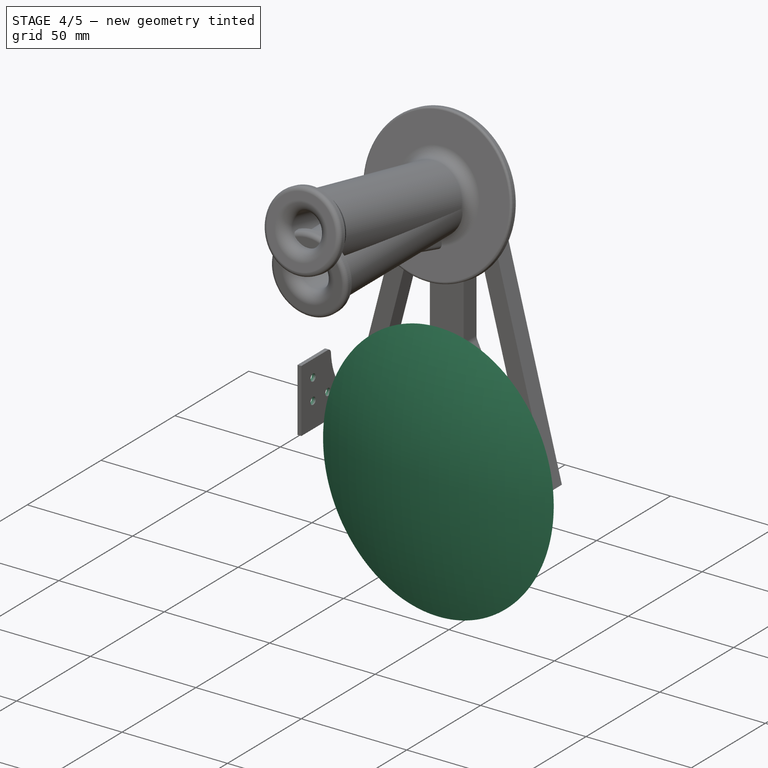
[diagram: stage 4 of 5 — iso view after this stage's code; geometry added in this stage tinted green]
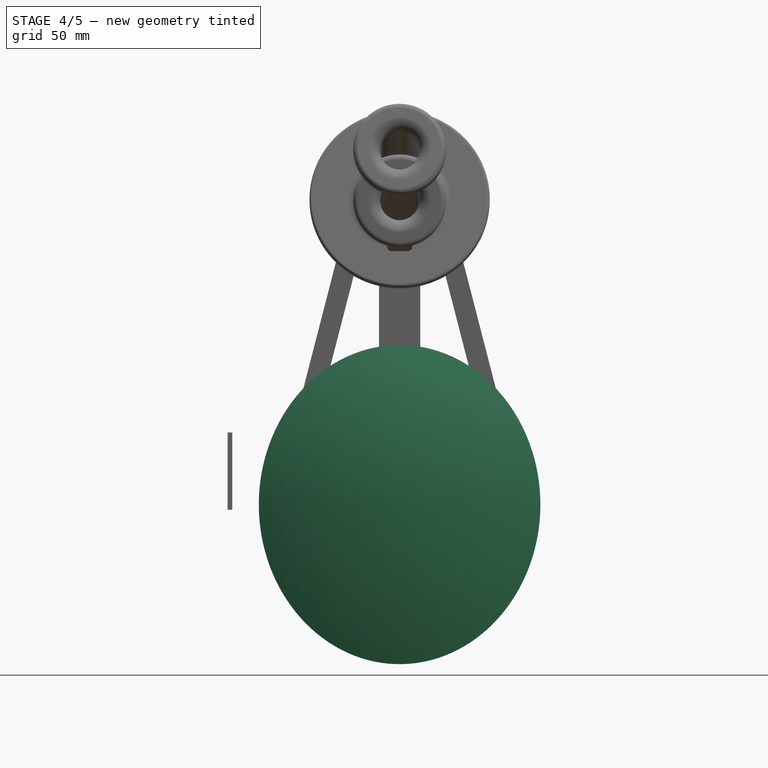
[diagram: stage 4 of 5 — front view after this stage's code; geometry added in this stage tinted green]
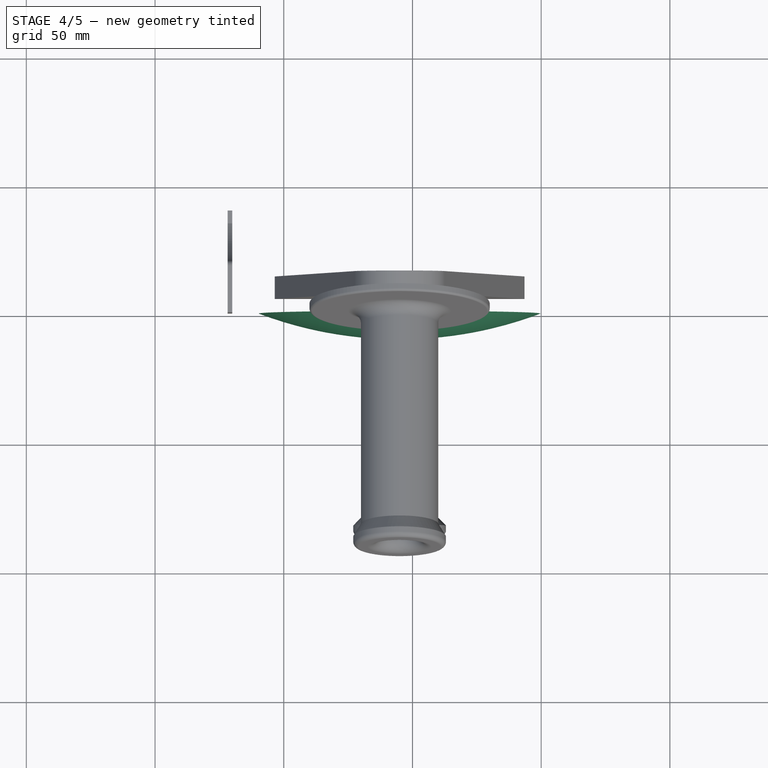
[diagram: stage 4 of 5 — top view after this stage's code; geometry added in this stage tinted green]
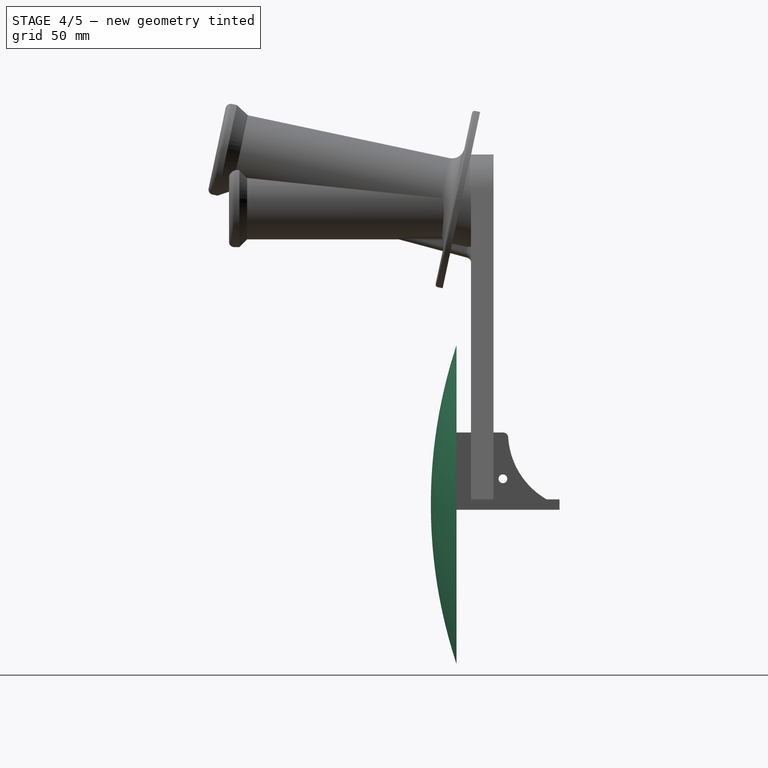
[diagram: stage 4 of 5 — right view after this stage's code; geometry added in this stage tinted green]
FEATURE [PartDesign::Hole] Hole
  BaseFeature = -> Pocket001
  Depth = 25
  DepthType = 0
  Diameter = 3.4
  DrillForDepth = false
  DrillPoint = 1
  DrillPointAngle = 118
  HoleCutCountersinkAngle = 90
  HoleCutCustomValues = false
  HoleCutDepth = 0
  HoleCutDiameter = 6.1
  HoleCutType = 0
  ModelActualThread = false
  Profile = -> Sketch009
  Tapered = false
  TaperedAngle = 90
  ThreadAngle = 0
  ThreadClass = 0
  ThreadCutOffInner = 0
  ThreadCutOffOuter = 0
  ThreadDirection = 0
  ThreadFit = 0
  ThreadPitch = 0
  ThreadSize = 0
  ThreadType = 0
  Threaded = false
  expr: Diameter = <<Input_Data>>.Link_Holes_PassDiam
FEATURE [Sketcher::SketchObject] Sketch010
  FullyConstrained = true
  MapMode = 5
  Placement = pos=(0,0,4) rot=(0,0,1;0rad)
  Support = -> [Hole]
  expr: Constraints[4] = <<Input_Data>>.Kallax_Screw_Support / 2
  expr: Constraints[3] = <<Input_Data>>.Radius_Kallax
  expr: Constraints[2] = <<Input_Data>>.Center_Kallax
  expr: Constraints[1] = <<Input_Data>>.Center_Kallax
  sketch-geometry (2):
    g0: Circle CenterX=20 CenterY=20 CenterZ=0 NormalX=0 NormalY=0 NormalZ=1 AngleXU=0 Radius=10
    g1: Circle CenterX=20 CenterY=20 CenterZ=0 NormalX=0 NormalY=0 NormalZ=1 AngleXU=0 Radius=3.6
  constraints (5):
    c: Coincident(g1,g0)
    c: DistanceX(g-1,g0) = 20
    c: DistanceY(g-1,g0) = 20
    c: Radius(g1) = 3.6
    c: Radius(g0) = 10
FEATURE [PartDesign::Pad] Pad004
  BaseFeature = -> Hole
  Direction = (1,1,1)
  Length = 2
  Length2 = 100
  Profile = -> Sketch010
  Type = 0
FEATURE [PartDesign::Chamfer] Chamfer
  Angle = 45
  Base = -> Pad004 [Face17]
  BaseFeature = -> Pad004
  ChamferType = 1
  FlipDirection = false
  Size = 4
  Size2 = 2.65
  SupportTransform = false
  expr: Size2 = 0.5 * <<Input_Data>>.Kallax_Screw_ChamDiam - <<Input_Data>>.Radius_Kallax
  expr: Size = <<Input_Data>>.Kallax_Screw_ChamDepth
FEATURE [PartDesign::Draft] Draft001
  Angle = 45
  Base = -> Chamfer [Face9]
  BaseFeature = -> Chamfer
  NeutralPlane = -> Chamfer [Face4]
  SupportTransform = false
  expr: Angle = <<Input_Data>>.General_Draft_Angle
FEATURE [PartDesign::Plane] DatumPlane002
  AttachmentOffset = pos=(0,0,30) rot=(0,0,1;0rad)
  Length = 320.412
  MapMode = 5
  Placement = pos=(0,0,30) rot=(0,0,1;0rad)
  ResizeMode = 0
  Support = -> [XY_Plane004]
  Width = 145.412
  expr: .AttachmentOffset.Base.z = <<Input_Data>>.Support_Height
FEATURE [Sketcher::SketchObject] Sketch011
  FullyConstrained = true
  MapMode = 5
  Placement = pos=(0,0,30) rot=(0,0,1;0rad)
  Support = -> [DatumPlane002]
  expr: Constraints[5] = <<Input_Data>>.Length_Kallax / 2 - <<Input_Data>>.Support_Holes_Margin
  expr: Constraints[6] = <<Input_Data>>.Link_Break + <<Input_Data>>.Link_Holes_Length + <<Input_Data>>.Support_Holes_Margin
  expr: Constraints[4] = <<Input_Data>>.Support_Holes_Width
  expr: Constraints[26] = <<Input_Data>>.Support_Holes_Radius
  expr: Constraints[7] = (<<Input_Data>>.Support_Small - <<Input_Data>>.Support_Holes_Width) / 2
  expr: Constraints[24] = <<Input_Data>>.Support_Holes_Radius
  expr: Constraints[25] = <<Input_Data>>.Support_Holes_Radius
  expr: Constraints[27] = <<Input_Data>>.Support_Holes_Radius
  sketch-geometry (12):
    g0: LineSegment StartX=146 StartY=14.5 StartZ=0 EndX=189 EndY=14.5 EndZ=0
    g1: LineSegment StartX=190 StartY=13.5 StartZ=0 EndX=190 EndY=6.5 EndZ=0
    g2: LineSegment StartX=189 StartY=5.5 StartZ=0 EndX=146 EndY=5.5 EndZ=0
    g3: LineSegment StartX=145 StartY=6.5 StartZ=0 EndX=145 EndY=13.5 EndZ=0
    g4: ArcOfCircle CenterX=146 CenterY=13.5 CenterZ=0 NormalX=0 NormalY=0 NormalZ=1 AngleXU=0 Radius=1 StartAngle=1.5708 EndAngle=3.14159
    g5: GeomPoint X=145 Y=14.5 Z=0
    g6: ArcOfCircle CenterX=146 CenterY=6.5 CenterZ=0 NormalX=0 NormalY=0 NormalZ=1 AngleXU=0 Radius=1 StartAngle=3.14159 EndAngle=4.71239
    g7: GeomPoint X=145 Y=5.5 Z=0
    g8: ArcOfCircle CenterX=189 CenterY=6.5 CenterZ=0 NormalX=0 NormalY=0 NormalZ=1 AngleXU=0 Radius=1 StartAngle=4.71239 EndAngle=6.28319
    g9: GeomPoint X=190 Y=5.5 Z=0
    g10: ArcOfCircle CenterX=189 CenterY=13.5 CenterZ=0 NormalX=0 NormalY=0 NormalZ=1 AngleXU=0 Radius=1 StartAngle=-9e-16 EndAngle=1.5708
    g11: GeomPoint X=190 Y=14.5 Z=0
  constraints (28):
    c: Horizontal(g0)
    c: Horizontal(g2)
    c: Vertical(g1)
    c: Vertical(g3)
    c: DistanceY(g7,g5) = 9
    c: DistanceX(g-1,g9) = 190
    c: DistanceX(g-1,g7) = 145
    c: DistanceY(g-1,g7) = 5.5
    c: PointOnObject(g5,g0)
    c: PointOnObject(g5,g3)
    c: Tangent(g0,g4) = 1.5708
    c: Tangent(g3,g4) = 1.5708
    c: PointOnObject(g7,g2)
    c: PointOnObject(g7,g3)
    c: Tangent(g2,g6) = 1.5708
    c: Tangent(g3,g6) = 1.5708
    c: PointOnObject(g9,g1)
    c: PointOnObject(g9,g2)
    c: Tangent(g1,g8) = 1.5708
    c: Tangent(g2,g8) = 1.5708
    c: PointOnObject(g11,g0)
    c: PointOnObject(g11,g1)
    c: Tangent(g0,g10) = 1.5708
    c: Tangent(g1,g10) = 1.5708
    c: Radius(g10) = 1
    c: Radius(g8) = 1
    c: Radius(g6) = 1
    c: Radius(g4) = 1
FEATURE [PartDesign::Plane] DatumPlane003
  AttachmentOffset = pos=(0,0,195) rot=(0,0,1;0rad)
  Length = 63.4164
  MapMode = 5
  Placement = pos=(195,-4.33e-14,4.33e-14) rot=(0.57735,0.57735,0.57735;2.0944rad)
  ResizeMode = 0
  Support = -> [YZ_Plane007]
  Width = 103.416
  expr: .AttachmentOffset.Base.z = <<Input_Data>>.Length_Kallax / 2
FEATURE [Sketcher::SketchObject] Sketch012
  FullyConstrained = true
  MapMode = 5
  Placement = pos=(195,-4.33e-14,4.33e-14) rot=(-0.57735,0.57735,0.57735;4.18879rad)
  Support = -> [DatumPlane003]
  expr: Constraints[4] = <<Input_Data>>.Cover_Length
  expr: Constraints[11] = <<Input_Data>>.Cover_Radius
  expr: Constraints[12] = <<Input_Data>>.Support_Height
  expr: Constraints[14] = <<Input_Data>>.Cover_Radius_2
  sketch-geometry (5):
    g0: ArcOfCircle CenterX=-187.139 CenterY=1.9901 CenterZ=0 NormalX=0 NormalY=0 NormalZ=1 AngleXU=0 Radius=197.139 StartAngle=5.96331 EndAngle=6.60306
    g1: LineSegment StartX=0 StartY=0 StartZ=0 EndX=0 EndY=63.9802 EndZ=0
    g2: LineSegment StartX=-5.68e-14 StartY=0 StartZ=0 EndX=-5.68e-14 EndY=-60 EndZ=0
    g3: LineSegment StartX=0 StartY=30 StartZ=0 EndX=8 EndY=30 EndZ=0
    g4: LineSegment StartX=10 StartY=63.9802 StartZ=0 EndX=10 EndY=-60 EndZ=0
  constraints (18):
    c: PointOnObject(g1,g-1)
    c: Vertical(g1)
    c: Coincident(g2,g-1)
    c: Vertical(g2)
    c: DistanceY(g2,g2) = 60
    c: DistanceX(g2,g1) = 0
    c: Coincident(g0,g2)
    c: Coincident(g0,g1)
    c: PointOnObject(g3,g1)
    c: PointOnObject(g3,g0)
    c: Horizontal(g3)
    c: DistanceX(g3,g3) = 8
    c: DistanceY(g1,g3) = 30
    c: Vertical(g4)
    c: DistanceX(g1,g4) = 10
    c: Tangent(g0,g4)
    c: DistanceY(g0,g4) = 0
    c: DistanceY(g4,g0) = 0
FEATURE [PartDesign::Line] DatumLine
  AttacherType = Attacher::AttachEngineLine
  AttachmentOffset = pos=(195,120,0) rot=(0,0,1;0rad)
  Length = 20
  MapMode = 29
  Placement = pos=(195,120,2.5e-14) rot=(0,0,1;0rad)
  ResizeMode = 0
  Support = -> [Z_Axis007]
  expr: .AttachmentOffset.Base.y = 120
  expr: .AttachmentOffset.Base.x = <<Input_Data>>.Length_Kallax / 2
FEATURE [Sketcher::SketchObject] Sketch014
  FullyConstrained = true
  MapMode = 5
  Support = -> [XY_Plane007]
  expr: Constraints[9] = <<Input_Data>>.Length_Kallax
  expr: Constraints[10] = <<Input_Data>>.Width_Kallax * 2
  sketch-geometry (4):
    g0: LineSegment StartX=0 StartY=0 StartZ=0 EndX=390 EndY=0 EndZ=0
    g1: LineSegment StartX=390 StartY=0 StartZ=0 EndX=390 EndY=80 EndZ=0
    g2: LineSegment StartX=390 StartY=80 StartZ=0 EndX=0 EndY=80 EndZ=0
    g3: LineSegment StartX=0 StartY=80 StartZ=0 EndX=0 EndY=0 EndZ=0
  constraints (11):
    c: Coincident(g0,g1)
    c: Coincident(g1,g2)
    c: Coincident(g2,g3)
    c: Coincident(g3,g0)
    c: Horizontal(g0)
    c: Horizontal(g2)
    c: Vertical(g1)
    c: Vertical(g3)
    c: Coincident(g0,g-1)
    c: DistanceX(g2,g2) = 390
    c: DistanceY(g3,g3) = 80
FEATURE [PartDesign::Plane] DatumPlane004
  AttachmentOffset = pos=(0,0,30) rot=(0,0,1;0rad)
  Length = 298.122
  MapMode = 5
  Placement = pos=(0,0,30) rot=(0,0,1;0rad)
  ResizeMode = 0
  Support = -> [XY_Plane007]
  Width = 73.4386
  expr: .AttachmentOffset.Base.z = <<Input_Data>>.Support_Height
FEATURE [Sketcher::SketchObject] Sketch013
  FullyConstrained = true
  MapMode = 5
  Placement = pos=(0,0,30) rot=(0,0,1;0rad)
  Support = -> [DatumPlane004]
  expr: Constraints[2] = <<Input_Data>>.Center_Length * 0.75
  expr: Constraints[10] = <<Input_Data>>.Length_Kallax / 2
  expr: Constraints[6] = <<Input_Data>>.Cover_Radius
  expr: Constraints[12] = <<Input_Data>>.Width_Kallax
  sketch-geometry (4):
    g0: LineSegment StartX=146.25 StartY=0 StartZ=0 EndX=243.75 EndY=0 EndZ=0
    g1: LineSegment StartX=146.25 StartY=-8 StartZ=0 EndX=243.75 EndY=-8 EndZ=0
    g2: ArcOfCircle CenterX=195 CenterY=144.535 CenterZ=0 NormalX=0 NormalY=0 NormalZ=1 AngleXU=0 Radius=152.535 StartAngle=3.89663 EndAngle=5.52814
    g3: LineSegment StartX=83.9173 StartY=40 StartZ=0 EndX=306.083 EndY=40 EndZ=0
  constraints (15):
    c: Horizontal(g0)
    c: DistanceY(g0,g-1) = 0
    c: DistanceX(g0,g0) = 97.5
    c: Horizontal(g1)
    c: DistanceX(g1,g0) = 0
    c: DistanceX(g0,g1) = 0
    c: DistanceY(g1,g-1) = 8
    c: Tangent(g2,g1)
    c: PointOnObject(g0,g2)
    c: PointOnObject(g0,g2)
    c: DistanceX(g-1,g2) = 195
    c: Horizontal(g3)
    c: DistanceY(g-1,g3) = 40
    c: Coincident(g2,g3)
    c: Coincident(g2,g3)
FEATURE [PartDesign::AdditivePipe] AdditivePipe
  AuxilleryCurvelinear = true
  AuxillerySpineTangent = false
  Binormal = (0,0,0)
  Mode = 0
  Placement = pos=(195,-4.3e-14,4.3e-14) rot=(0.57735,0.57735,0.57735;2.0944rad)
  Profile = -> Sketch012
  Spine = -> Sketch013
  SpineTangent = false
  Transformation = 0
  Transition = 0
FEATURE [PartDesign::Pocket] Pocket003
  BaseFeature = -> AdditivePipe
  Length = 5
  Length2 = 100
  Midplane = true
  Placement = pos=(195,-4.3e-14,4.3e-14) rot=(0.57735,0.57735,0.57735;2.0944rad)
  Profile = -> Sketch014
  Type = 1
FEATURE [PartDesign::Fillet] Fillet
  Base = -> Draft001 [Edge18,Edge11]
  BaseFeature = -> Draft001
  Radius = 7
  SupportTransform = false
  expr: Radius = <<Input_Data>>.Kallax_Out_Radius
FEATURE [PartDesign::Fillet] Fillet001
  Base = -> Fillet [Edge42,Edge37]
  BaseFeature = -> Fillet
  Radius = 2
  SupportTransform = false
  expr: Radius = <<Input_Data>>.Finish_Radius
FEATURE [PartDesign::Body] Body003
  Group = -> [DatumPlane003,Sketch012,DatumLine,Sketch013,AdditivePipe,Sketch014,Pocket003,DatumPlane004,Sketch015,Pocket004,DatumPlane006,Sketch018,Pocket006,Hole001]
  Origin = -> Origin007
  Tip = -> Hole001
FEATURE [App::Part] Part003  label="Cover"
  Group = -> [Body003]
  Origin = -> Origin006
FEATURE [Sketcher::SketchObject] Sketch021
  FullyConstrained = true
  MapMode = 5
  Support = -> [XY_Plane001]
  expr: Constraints[11] = (<<Input_Data>>.Length_Kallax - <<Input_Data>>.Center_Length) / 2 - 1.8
  expr: Constraints[10] = <<Input_Data>>.Width_Kallax + 5
  sketch-geometry (4):
    g0: LineSegment StartX=-5 StartY=45 StartZ=0 EndX=128.2 EndY=45 EndZ=0
    g1: LineSegment StartX=128.2 StartY=45 StartZ=0 EndX=128.2 EndY=-5 EndZ=0
    g2: LineSegment StartX=128.2 StartY=-5 StartZ=0 EndX=-5 EndY=-5 EndZ=0
    g3: LineSegment StartX=-5 StartY=-5 StartZ=0 EndX=-5 EndY=45 EndZ=0
  constraints (12):
    c: Coincident(g0,g1)
    c: Coincident(g1,g2)
    c: Coincident(g2,g3)
    c: Coincident(g3,g0)
    c: Horizontal(g0)
    c: Horizontal(g2)
    c: Vertical(g1)
    c: Vertical(g3)
    c: DistanceX(g2,g-1) = 5
    c: DistanceY(g2,g-1) = 5
    c: DistanceY(g-1,g0) = 45
    c: DistanceX(g-1,g0) = 128.2
FEATURE [PartDesign::Pocket] Pocket007
  BaseFeature = -> Fillet001
  Length = 5
  Length2 = 100
  Profile = -> Sketch021
  Reversed = true
  Type = 1
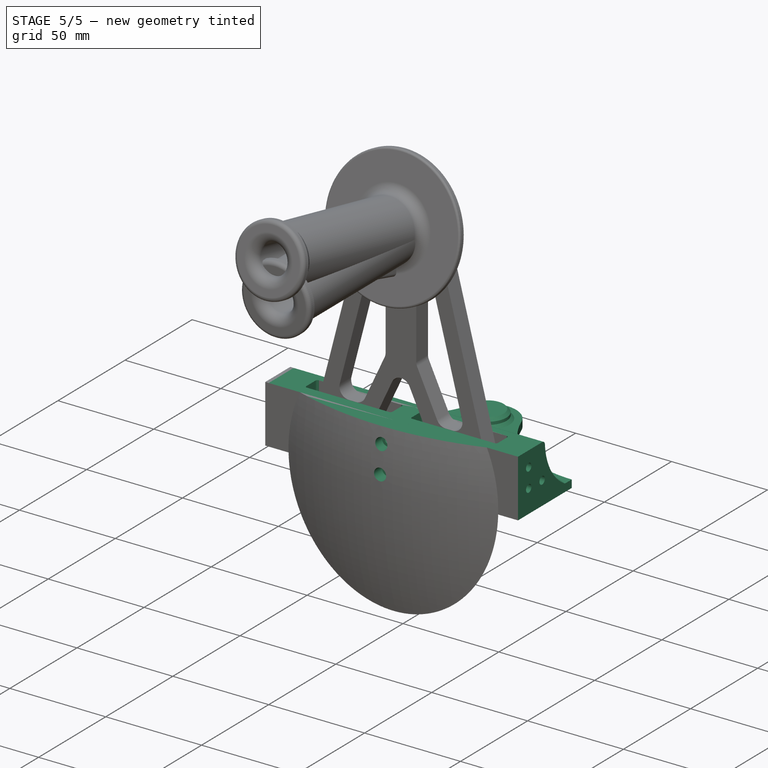
[diagram: stage 5 of 5 — iso view after this stage's code; geometry added in this stage tinted green]
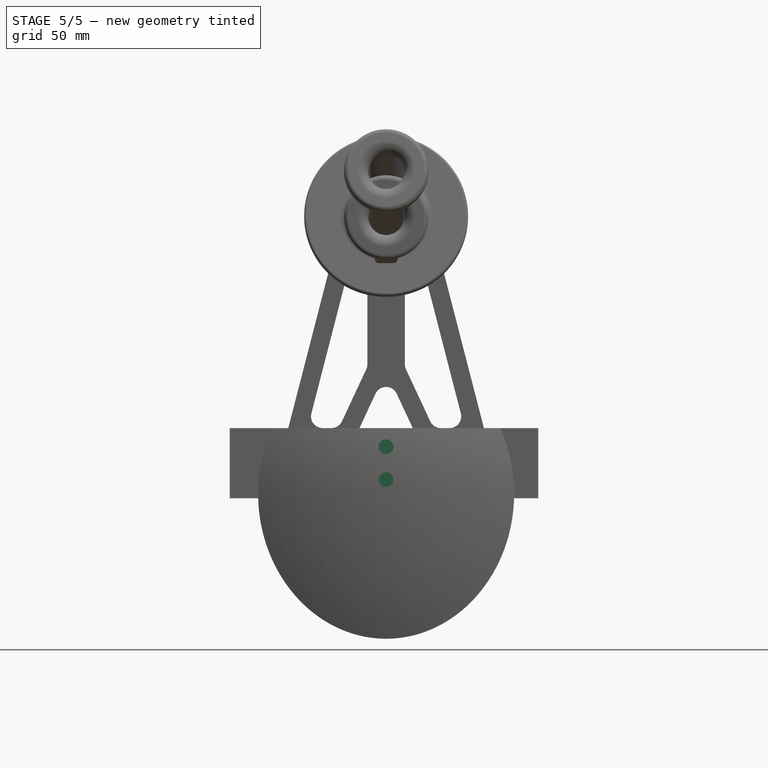
[diagram: stage 5 of 5 — front view after this stage's code; geometry added in this stage tinted green]
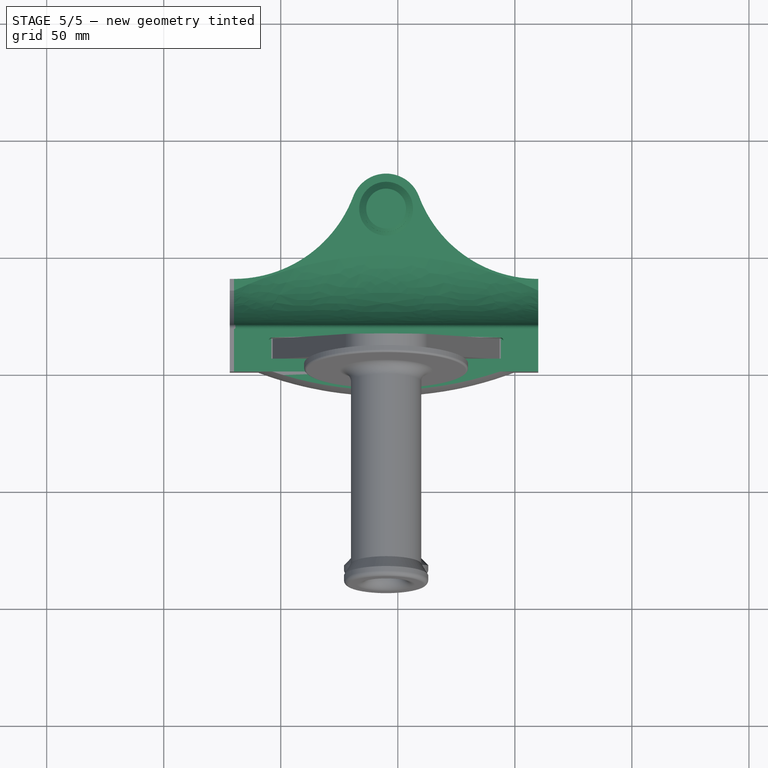
[diagram: stage 5 of 5 — top view after this stage's code; geometry added in this stage tinted green]
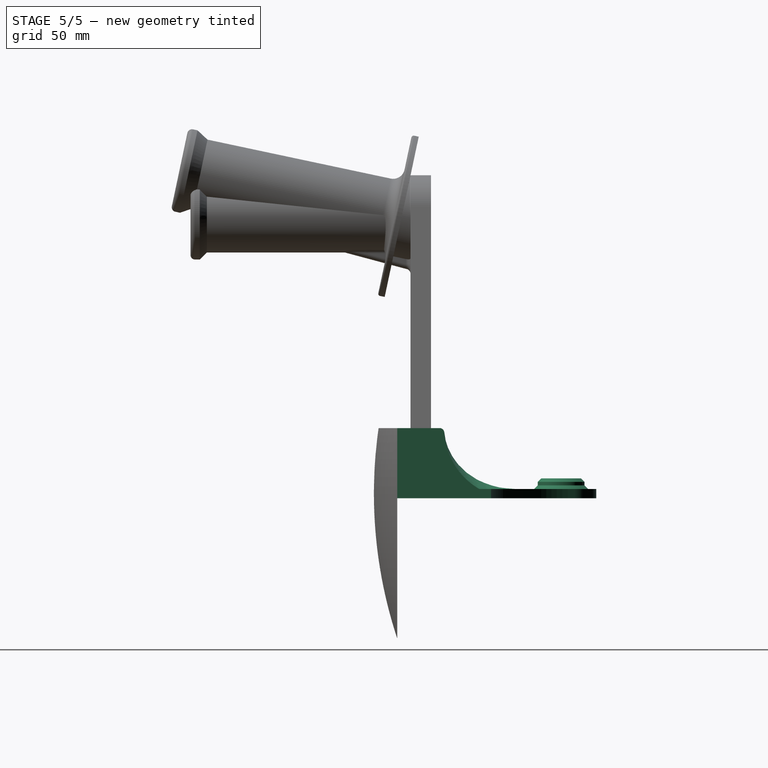
[diagram: stage 5 of 5 — right view after this stage's code; geometry added in this stage tinted green]
FEATURE [Sketcher::SketchObject] Sketch015
  FullyConstrained = true
  MapMode = 5
  Placement = pos=(0,0,0) rot=(0.57735,0.57735,0.57735;2.0944rad)
  Support = -> [YZ_Plane007]
  expr: Constraints[8] = <<Input_Data>>.Support_Height
  sketch-geometry (4):
    g0: LineSegment StartX=-50 StartY=80 StartZ=0 EndX=50 EndY=80 EndZ=0
    g1: LineSegment StartX=50 StartY=80 StartZ=0 EndX=50 EndY=30 EndZ=0
    g2: LineSegment StartX=50 StartY=30 StartZ=0 EndX=-50 EndY=30 EndZ=0
    g3: LineSegment StartX=-50 StartY=30 StartZ=0 EndX=-50 EndY=80 EndZ=0
  constraints (12):
    c: Coincident(g0,g1)
    c: Coincident(g1,g2)
    c: Coincident(g2,g3)
    c: Coincident(g3,g0)
    c: Horizontal(g0)
    c: Horizontal(g2)
    c: Vertical(g1)
    c: Vertical(g3)
    c: DistanceY(g-1,g1) = 30
    c: DistanceY(g1,g1) = 50
    c: DistanceX(g0,g0) = 100
    c: DistanceX(g2,g-1) = 50
FEATURE [PartDesign::Pocket] Pocket004
  BaseFeature = -> Pocket003
  Length = 5
  Length2 = 100
  Placement = pos=(195,-4.3e-14,4.3e-14) rot=(0.57735,0.57735,0.57735;2.0944rad)
  Profile = -> Sketch015
  Reversed = true
  Type = 1
FEATURE [PartDesign::Plane] DatumPlane005
  Length = 320.412
  MapMode = 5
  Placement = pos=(0,0,4) rot=(0,0,1;0rad)
  ResizeMode = 0
  Support = -> [AdditiveLoft]
  Width = 145.412
FEATURE [Sketcher::SketchObject] Sketch016
  FullyConstrained = true
  MapMode = 5
  Placement = pos=(0,0,4) rot=(0,0,1;0rad)
  Support = -> [DatumPlane005]
  expr: Constraints[0] = <<Input_Data>>.In_Support_Diameter / 2 - 5
  expr: Constraints[2] = <<Input_Data>>.In_Support_Dist
  expr: Constraints[1] = <<Input_Data>>.Length_Kallax / 2
  sketch-geometry (1):
    g0: Circle CenterX=195 CenterY=70 CenterZ=0 NormalX=0 NormalY=0 NormalZ=1 AngleXU=0 Radius=10
  constraints (3):
    c: Radius(g0) = 10
    c: DistanceX(g-1,g0) = 195
    c: DistanceY(g-1,g0) = 70
FEATURE [Sketcher::SketchObject] Sketch017
  FullyConstrained = true
  MapMode = 5
  Placement = pos=(0,0,0) rot=(1,0,0;1.5708rad)
  Support = -> [XZ_Plane004]
  expr: Constraints[5] = <<Input_Data>>.Support_Height - <<Input_Data>>.Link_Holes_ToEdge
  expr: Constraints[4] = <<Input_Data>>.Link_Holes_ToEdge
  expr: Constraints[3] = <<Input_Data>>.Length_Kallax / 2
  expr: Constraints[1] = <<Input_Data>>.Insert_Width / 2
  expr: Constraints[0] = <<Input_Data>>.Insert_Width / 2
  sketch-geometry (2):
    g0: Circle CenterX=195 CenterY=22 CenterZ=0 NormalX=0 NormalY=0 NormalZ=1 AngleXU=0 Radius=2
    g1: Circle CenterX=195 CenterY=8 CenterZ=0 NormalX=0 NormalY=0 NormalZ=1 AngleXU=0 Radius=2
  constraints (6):
    c: Radius(g0) = 2
    c: Radius(g1) = 2
    c: DistanceX(g1,g0) = 0
    c: DistanceX(g-1,g1) = 195
    c: DistanceY(g-1,g1) = 8
    c: DistanceY(g-1,g0) = 22
FEATURE [PartDesign::Plane] DatumPlane006
  AttachmentOffset = pos=(0,0,4) rot=(0,0,1;0rad)
  Length = 306.129
  MapMode = 5
  Placement = pos=(0,-4,-9e-16) rot=(1,0,0;1.5708rad)
  ResizeMode = 0
  Support = -> [XZ_Plane007]
  Width = 121.446
  expr: .AttachmentOffset.Base.z = <<Input_Data>>.Link_Holes_PassLen
FEATURE [Sketcher::SketchObject] Sketch018
  FullyConstrained = true
  MapMode = 5
  Placement = pos=(0,-4,-9e-16) rot=(1,0,0;1.5708rad)
  Support = -> [DatumPlane006]
  expr: Constraints[4] = <<Input_Data>>.Link_Holes_ToEdge
  expr: Constraints[3] = <<Input_Data>>.Length_Kallax / 2
  expr: Constraints[5] = <<Input_Data>>.Support_Height - <<Input_Data>>.Link_Holes_ToEdge
  expr: Constraints[2] = <<Input_Data>>.Link_Holes_HeadDiam / 2
  expr: Constraints[1] = <<Input_Data>>.Link_Holes_HeadDiam / 2
  sketch-geometry (2):
    g0: Circle CenterX=195 CenterY=22 CenterZ=0 NormalX=0 NormalY=0 NormalZ=1 AngleXU=0 Radius=3.15
    g1: Circle CenterX=195 CenterY=8 CenterZ=0 NormalX=0 NormalY=0 NormalZ=1 AngleXU=0 Radius=3.15
  constraints (6):
    c: DistanceX(g0,g1) = 0
    c: Radius(g0) = 3.15
    c: Radius(g1) = 3.15
    c: DistanceX(g-1,g1) = 195
    c: DistanceY(g-1,g1) = 8
    c: DistanceY(g-1,g0) = 22
FEATURE [PartDesign::Pocket] Pocket006
  BaseFeature = -> Pocket004
  Length = 5
  Length2 = 100
  Placement = pos=(195,-4.3e-14,4.3e-14) rot=(0.57735,0.57735,0.57735;2.0944rad)
  Profile = -> Sketch018
  Reversed = true
  Type = 1
FEATURE [PartDesign::Hole] Hole001
  BaseFeature = -> Pocket006
  Depth = 25
  DepthType = 1
  Diameter = 3.4
  DrillForDepth = false
  DrillPoint = 1
  DrillPointAngle = 118
  HoleCutCountersinkAngle = 90
  HoleCutCustomValues = false
  HoleCutDepth = 0
  HoleCutDiameter = 6.1
  HoleCutType = 0
  ModelActualThread = false
  Placement = pos=(195,-4.3e-14,4.3e-14) rot=(0.57735,0.57735,0.57735;2.0944rad)
  Profile = -> Sketch018
  Tapered = false
  TaperedAngle = 90
  ThreadAngle = 0
  ThreadClass = 0
  ThreadCutOffInner = 0
  ThreadCutOffOuter = 0
  ThreadDirection = 0
  ThreadFit = 0
  ThreadPitch = 0
  ThreadSize = 9
  ThreadType = 1
  Threaded = false
FEATURE [PartDesign::Body] Body006
  Group = -> [DatumPlane012,ReferenceDatumPlane010,Sketch029,Pad012,Sketch030,Pad013,Sketch031,Pad014,Sketch032,Pocket010,Sketch033,Pocket011,Fillet013,Fillet014,Chamfer004,Fillet015]
  Origin = -> Origin013
  Tip = -> Fillet015
FEATURE [App::Part] Part006  label="StandB2"
  Group = -> [Body006]
  Origin = -> Origin012
FEATURE [App::Part] Part002  label="Center"
  Group = -> [Body001]
  Origin = -> Origin003
FEATURE [PartDesign::Body] Body001
  Group = -> [Sketch003,Pad002,DatumPlane,Sketch004,Sketch005,Sketch006,AdditiveLoft,DatumPlane005,Sketch007,Pocket,Mirrored,DatumPlane002,Sketch011,Pocket002,Mirrored001,Sketch016,Pad005,Chamfer001,Fillet002,Sketch017,Pocket005]
  Origin = -> Origin004
  Tip = -> Pocket005
FEATURE [Sketcher::SketchObject] Sketch007
  FullyConstrained = true
  MapMode = 5
  Placement = pos=(130,0,0) rot=(0.57735,-0.57735,-0.57735;2.0944rad)
  Support = -> [Mirrored]
  expr: Constraints[8] = <<Input_Data>>.Link_Holes_Separation
  expr: Constraints[7] = <<Input_Data>>.Link_Holes_Separation
  expr: Constraints[6] = <<Input_Data>>.Link_Holes_ToEdge + <<Input_Data>>.Plate_Height
  expr: Constraints[5] = <<Input_Data>>.Link_Holes_ToEdge
  expr: Constraints[2] = <<Input_Data>>.Insert_Width / 2
  expr: Constraints[1] = <<Input_Data>>.Insert_Width / 2
  expr: Constraints[0] = <<Input_Data>>.Insert_Width / 2
  sketch-geometry (3):
    g0: Circle CenterX=-8 CenterY=12 CenterZ=0 NormalX=0 NormalY=0 NormalZ=1 AngleXU=0 Radius=2
    g1: Circle CenterX=-8 CenterY=22 CenterZ=0 NormalX=0 NormalY=0 NormalZ=1 AngleXU=0 Radius=2
    g2: Circle CenterX=-18 CenterY=12 CenterZ=0 NormalX=0 NormalY=0 NormalZ=1 AngleXU=0 Radius=2
  constraints (9):
    c: Radius(g2) = 2
    c: Radius(g1) = 2
    c: Radius(g0) = 2
    c: DistanceY(g0,g2) = 0
    c: DistanceX(g0,g1) = 0
    c: DistanceX(g0,g-1) = 8
    c: DistanceY(g-1,g0) = 12
    c: DistanceX(g2,g0) = 10
    c: DistanceY(g0,g1) = 10
FEATURE [PartDesign::Pocket] Pocket
  BaseFeature = -> AdditiveLoft
  Length = 10
  Length2 = 100
  Profile = -> Sketch007
  Type = 0
  expr: Length = <<Input_Data>>.Link_Holes_Length
FEATURE [PartDesign::Mirrored] Mirrored
  BaseFeature = -> Pocket
  MirrorPlane = -> DatumPlane
  Originals = -> [Pocket]
FEATURE [PartDesign::Pocket] Pocket002
  BaseFeature = -> Mirrored
  Length = 26
  Length2 = 100
  Profile = -> Sketch011
  Type = 0
  expr: Length = <<Input_Data>>.Support_Height - <<Input_Data>>.Plate_Height
FEATURE [PartDesign::Mirrored] Mirrored001
  BaseFeature = -> Pocket002
  MirrorPlane = -> DatumPlane
  Originals = -> [Pocket002]
FEATURE [PartDesign::Pad] Pad005
  BaseFeature = -> Mirrored001
  Direction = (1,1,1)
  Length = 4.5
  Length2 = 100
  Profile = -> Sketch016
  Type = 0
  expr: Length = <<Input_Data>>.In_Support_Height - <<Input_Data>>.Plate_Height
FEATURE [PartDesign::Chamfer] Chamfer001
  Angle = 45
  Base = -> Pad005 [Face10]
  BaseFeature = -> Pad005
  ChamferType = 0
  FlipDirection = false
  Size = 1.5
  Size2 = 1
  SupportTransform = false
FEATURE [PartDesign::Fillet] Fillet002
  Base = -> Chamfer001 [Edge22]
  BaseFeature = -> Chamfer001
  Radius = 2
  SupportTransform = false
  expr: Radius = <<Input_Data>>.Finish_Radius
FEATURE [PartDesign::Pocket] Pocket005
  BaseFeature = -> Fillet002
  Length = 10
  Length2 = 100
  Profile = -> Sketch017
  Type = 0
  expr: Length = <<Input_Data>>.Link_Holes_Length
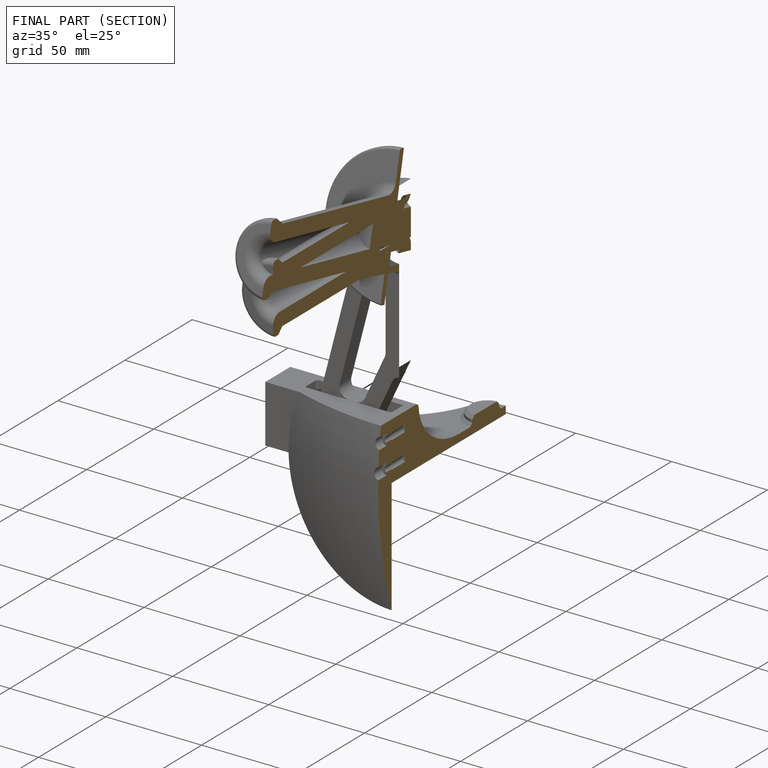
[diagram: finished part — half-section view (interior)]
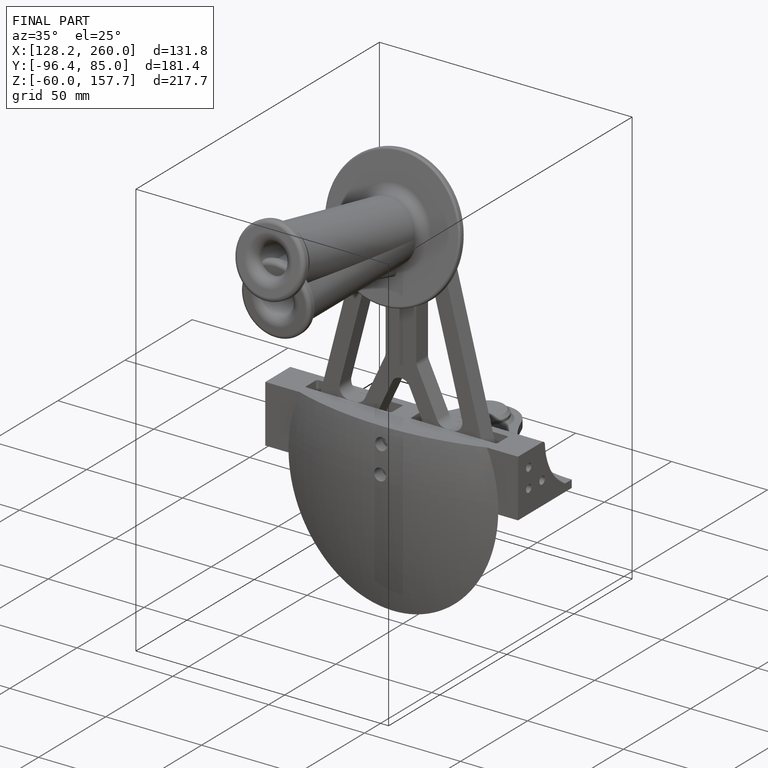
[diagram: finished part — iso view with bounding-box wireframe]
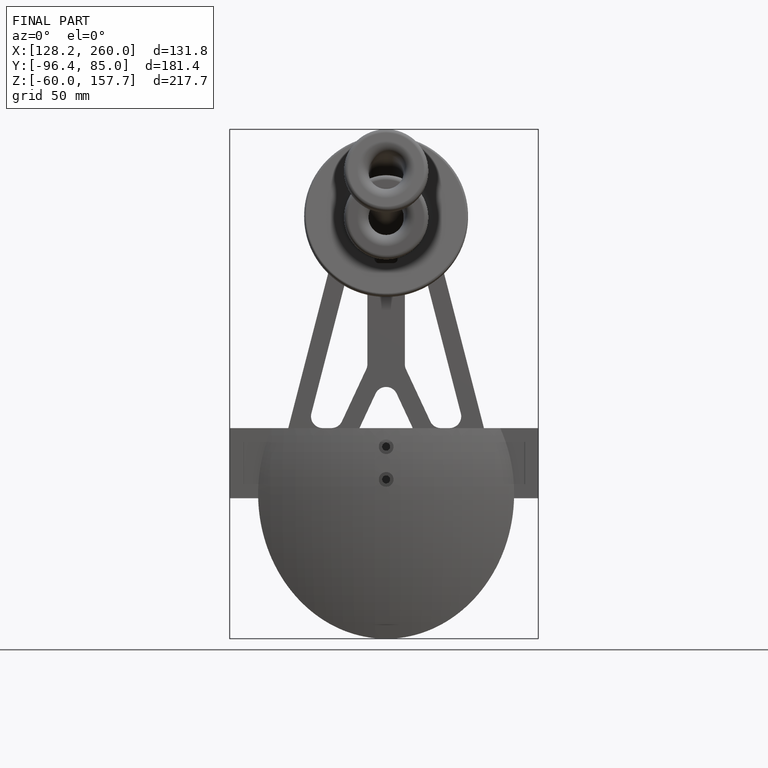
[diagram: finished part — front view with bounding-box wireframe]
